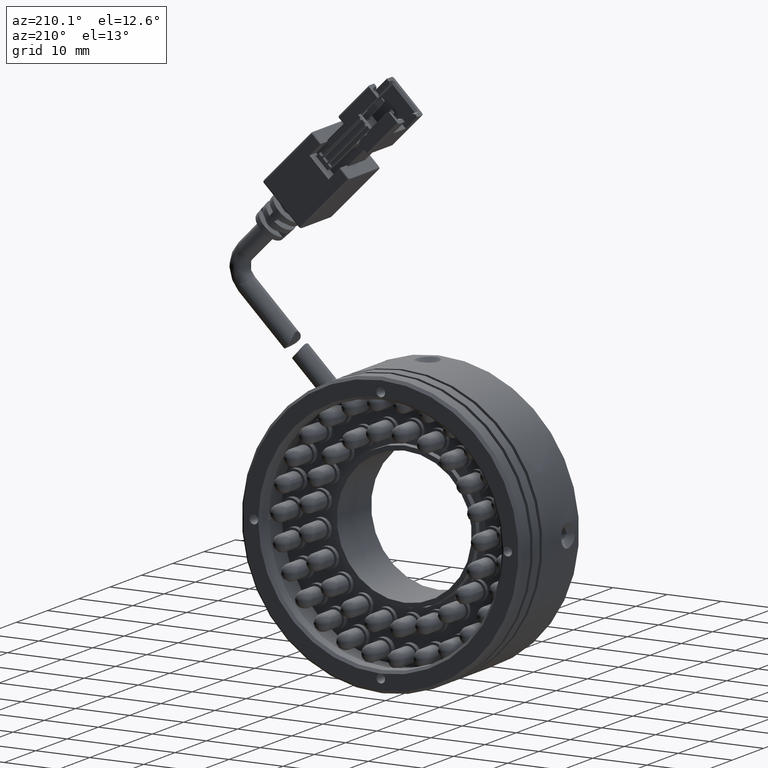
[diagram: clean part render]
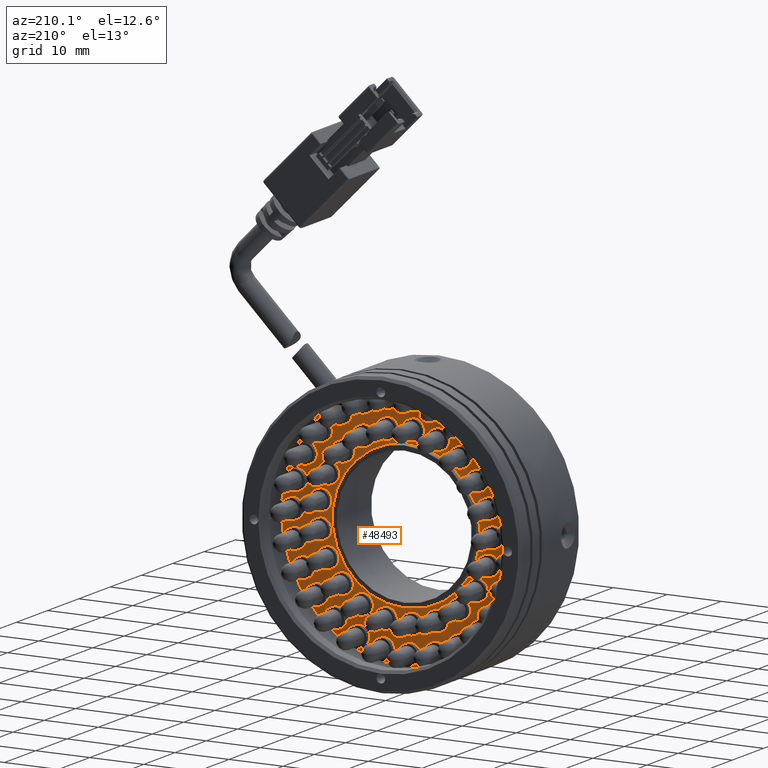
[diagram: same view with one face highlighted and labeled with its STEP entity id]
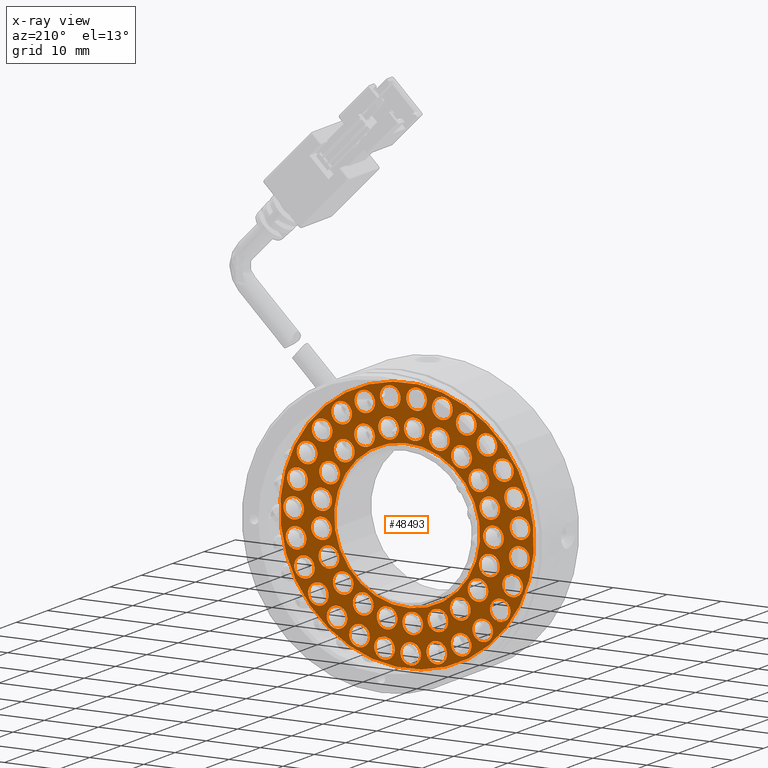
[diagram: x-ray of the same camera — body ghosted, the highlighted face saturated]
A machine part, auxiliary view. The second image highlights one B-rep face of the part: STEP entity #48493.
The next image is the same camera in x-ray: the body ghosted, the highlighted face saturated — about 0% of this face is hidden behind the body in this view.
In plain terms, the highlighted planar face has unit normal (0, -1, -0).
Its self-contained STEP definition (entity closure, byte-faithful):
#37 = DIRECTION ( 'NONE',  ( -0.9964823369000800300, 0.0000000000000000000, -0.08380305630557503800 ) ) ;
#49 = CIRCLE ( 'NONE', #19637, 1.900000000000969800 ) ;
#50 = DIRECTION ( 'NONE',  ( -0.9964823369000800300, 0.0000000000000000000, -0.08380305630557498300 ) ) ;
#95 = AXIS2_PLACEMENT_3D ( 'NONE', #1848, #28240, #5646 ) ;
#198 = DIRECTION ( 'NONE',  ( -0.9964823369000799200, 0.0000000000000000000, -0.08380305630557580200 ) ) ;
#213 = FACE_BOUND ( 'NONE', #30491, .T. ) ;
#272 = CARTESIAN_POINT ( 'NONE',  ( -4.659576637153827000, 4.580076170238128500, -14.78733973511462800 ) ) ;
#285 = CIRCLE ( 'NONE', #44778, 1.900000000001690600 ) ;
#335 = EDGE_CURVE ( 'NONE', #2788, #28066, #6690, .T. ) ;
#373 = AXIS2_PLACEMENT_3D ( 'NONE', #29862, #7233, #33606 ) ;
#466 = AXIS2_PLACEMENT_3D ( 'NONE', #7332, #33711, #11115 ) ;
#656 = DIRECTION ( 'NONE',  ( -0.9964823369000801500, 0.0000000000000000000, -0.08380305630557509400 ) ) ;
#693 = DIRECTION ( 'NONE',  ( -0.9964823369000801500, 0.0000000000000000000, -0.08380305630557496900 ) ) ;
#773 = AXIS2_PLACEMENT_3D ( 'NONE', #33294, #10681, #37090 ) ;
#849 = ORIENTED_EDGE ( 'NONE', *, *, #3038, .F. ) ;
#877 = VERTEX_POINT ( 'NONE', #272 ) ;
#879 = VERTEX_POINT ( 'NONE', #1081 ) ;
#918 = EDGE_LOOP ( 'NONE', ( #39013, #17514 ) ) ;
#1081 = CARTESIAN_POINT ( 'NONE',  ( -16.78617151896034800, 4.580076170238128500, 11.24381569832448100 ) ) ;
#1106 = ORIENTED_EDGE ( 'NONE', *, *, #20896, .F. ) ;
#1135 = CIRCLE ( 'NONE', #33402, 1.900000000001709900 ) ;
#1152 = EDGE_CURVE ( 'NONE', #30662, #2390, #41303, .T. ) ;
#1172 = CARTESIAN_POINT ( 'NONE',  ( 9.366369393606577300, 4.580076170238128500, 17.00233797802635400 ) ) ;
#1176 = EDGE_CURVE ( 'NONE', #42451, #31823, #31285, .T. ) ;
#1284 = DIRECTION ( 'NONE',  ( -1.152656876524891300E-021, 1.000000000000000000, 9.025018899253366500E-022 ) ) ;
#1342 = AXIS2_PLACEMENT_3D ( 'NONE', #45186, #22621, #50 ) ;
#1380 = FACE_BOUND ( 'NONE', #2074, .T. ) ;
#1426 = DIRECTION ( 'NONE',  ( -1.152656876524891300E-021, 1.000000000000000000, 9.025018899253366500E-022 ) ) ;
#1437 = EDGE_LOOP ( 'NONE', ( #10917, #7638 ) ) ;
#1660 = CIRCLE ( 'NONE', #20886, 1.900000000000317000 ) ;
#1751 = CARTESIAN_POINT ( 'NONE',  ( 7.967652574504900700, 4.580076170238128500, -19.06222007339512100 ) ) ;
#1821 = DIRECTION ( 'NONE',  ( -1.152656876524891300E-021, 1.000000000000000000, 9.025018899253366500E-022 ) ) ;
#1848 = CARTESIAN_POINT ( 'NONE',  ( 19.70851044701917200, 4.580076170238128500, -4.315750036957144400 ) ) ;
#1866 = ORIENTED_EDGE ( 'NONE', *, *, #10921, .F. ) ;
#1943 = AXIS2_PLACEMENT_3D ( 'NONE', #37529, #14951, #41281 ) ;
#1949 = DIRECTION ( 'NONE',  ( -1.152656876524891300E-021, 1.000000000000000000, 9.025018899253366500E-022 ) ) ;
#1971 = DIRECTION ( 'NONE',  ( -0.9964823369000800300, 0.0000000000000000000, -0.08380305630557521900 ) ) ;
#2074 = EDGE_LOOP ( 'NONE', ( #40921, #21454 ) ) ;
#2089 = VERTEX_POINT ( 'NONE', #23771 ) ;
#2160 = ORIENTED_EDGE ( 'NONE', *, *, #9570, .F. ) ;
#2189 = CARTESIAN_POINT ( 'NONE',  ( 0.9656075807898153500, 4.580076170238128500, -15.72502188844289400 ) ) ;
#2209 = DIRECTION ( 'NONE',  ( -0.9964823369000800300, 0.0000000000000000000, -0.08380305630557470500 ) ) ;
#2211 = CIRCLE ( 'NONE', #11913, 1.900000000000337900 ) ;
#2280 = ORIENTED_EDGE ( 'NONE', *, *, #9464, .F. ) ;
#2339 = EDGE_CURVE ( 'NONE', #20236, #24658, #16364, .T. ) ;
#2348 = DIRECTION ( 'NONE',  ( -0.9964823369000800300, 0.0000000000000000000, -0.08380305630557498300 ) ) ;
#2376 = CIRCLE ( 'NONE', #43122, 1.900000000000454700 ) ;
#2390 = VERTEX_POINT ( 'NONE', #5601 ) ;
#2397 = DIRECTION ( 'NONE',  ( -1.152656876524891300E-021, 1.000000000000000000, 9.025018899253366500E-022 ) ) ;
#2409 = CARTESIAN_POINT ( 'NONE',  ( 12.12620440033161100, 4.580076170238128500, -16.51646461371153400 ) ) ;
#2549 = CARTESIAN_POINT ( 'NONE',  ( 9.175862796408230400, 4.580076170238128500, -13.62379466569605500 ) ) ;
#2577 = FACE_BOUND ( 'NONE', #35612, .T. ) ;
#2585 = DIRECTION ( 'NONE',  ( -1.152656876524891300E-021, 1.000000000000000000, 9.025018899253366500E-022 ) ) ;
#2622 = CARTESIAN_POINT ( 'NONE',  ( -6.552893077264838200, 4.580076170238128500, -14.94656554209529500 ) ) ;
#2668 = CIRCLE ( 'NONE', #47209, 1.900000000000863700 ) ;
#2670 = CIRCLE ( 'NONE', #25585, 1.900000000002131800 ) ;
#2681 = EDGE_CURVE ( 'NONE', #37778, #23220, #6325, .T. ) ;
#2735 = EDGE_LOOP ( 'NONE', ( #27711, #43097 ) ) ;
#2788 = VERTEX_POINT ( 'NONE', #6266 ) ;
#2798 = ORIENTED_EDGE ( 'NONE', *, *, #7646, .F. ) ;
#2809 = DIRECTION ( 'NONE',  ( -1.152656876524891300E-021, 1.000000000000000000, 9.025018899253366500E-022 ) ) ;
#2943 = CARTESIAN_POINT ( 'NONE',  ( -13.74911070226845300, 4.580076170238128500, 15.05835180961108900 ) ) ;
#3038 = EDGE_CURVE ( 'NONE', #24671, #3433, #4518, .T. ) ;
#3082 = AXIS2_PLACEMENT_3D ( 'NONE', #36222, #13622, #39991 ) ;
#3259 = EDGE_CURVE ( 'NONE', #8878, #10476, #27094, .T. ) ;
#3307 = DIRECTION ( 'NONE',  ( -0.9964823369000800300, 0.0000000000000000000, -0.08380305630557510800 ) ) ;
#3370 = CARTESIAN_POINT ( 'NONE',  ( -16.17469156224373700, 4.580076170238128500, 4.576733000881727500 ) ) ;
#3406 = DIRECTION ( 'NONE',  ( -1.152656876524891300E-021, 1.000000000000000000, 9.025018899253366500E-022 ) ) ;
#3433 = VERTEX_POINT ( 'NONE', #40254 ) ;
#3508 = ORIENTED_EDGE ( 'NONE', *, *, #2681, .F. ) ;
#3530 = CARTESIAN_POINT ( 'NONE',  ( 18.15925499619881800, 4.580076170238128500, -8.938977448268302000 ) ) ;
#3531 = AXIS2_PLACEMENT_3D ( 'NONE', #12489, #38877, #16314 ) ;
#3650 = EDGE_CURVE ( 'NONE', #35974, #16925, #19928, .T. ) ;
#3696 = DIRECTION ( 'NONE',  ( -0.9964823369000800300, 0.0000000000000000000, -0.08380305630557484400 ) ) ;
#3749 = CARTESIAN_POINT ( 'NONE',  ( -21.63163485146611000, 4.580076170238128500, -2.973632965574531300 ) ) ;
#3773 = FACE_BOUND ( 'NONE', #40306, .T. ) ;
#3776 = CARTESIAN_POINT ( 'NONE',  ( 19.56774214096332200, 4.580076170238128500, 10.06357775328904200 ) ) ;
#3823 = CIRCLE ( 'NONE', #18118, 1.900000000002028100 ) ;
#3855 = VERTEX_POINT ( 'NONE', #33950 ) ;
#3886 = PLANE ( 'NONE',  #8067 ) ;
#3928 = DIRECTION ( 'NONE',  ( -1.152656876524891300E-021, 1.000000000000000000, 9.025018899253366500E-022 ) ) ;
#3972 = ORIENTED_EDGE ( 'NONE', *, *, #22204, .F. ) ;
#4035 = ORIENTED_EDGE ( 'NONE', *, *, #42778, .F. ) ;
#4042 = CARTESIAN_POINT ( 'NONE',  ( -16.74997554712896200, 4.580076170238128500, -15.79968571663219900 ) ) ;
#4081 = EDGE_CURVE ( 'NONE', #11071, #44201, #20452, .T. ) ;
#4177 = CIRCLE ( 'NONE', #15667, 1.900000000000000100 ) ;
#4255 = CARTESIAN_POINT ( 'NONE',  ( -18.08586376727523500, 4.580076170238128500, -11.98715162663398600 ) ) ;
#4294 = ORIENTED_EDGE ( 'NONE', *, *, #13044, .F. ) ;
#4298 = EDGE_CURVE ( 'NONE', #16925, #35974, #41650, .T. ) ;
#4415 = VERTEX_POINT ( 'NONE', #22321 ) ;
#4504 = EDGE_LOOP ( 'NONE', ( #30062, #1106 ) ) ;
#4518 = CIRCLE ( 'NONE', #48832, 1.900000000000762900 ) ;
#4591 = DIRECTION ( 'NONE',  ( -1.152656876524891300E-021, 1.000000000000000000, 9.025018899253366500E-022 ) ) ;
#4607 = CARTESIAN_POINT ( 'NONE',  ( 6.975721020895298000, 4.580076170238128500, 19.49009757928529800 ) ) ;
#4665 = CARTESIAN_POINT ( 'NONE',  ( -15.87379275725947100, 4.580076170238128500, -9.292293712987431700 ) ) ;
#4811 = EDGE_CURVE ( 'NONE', #40284, #22404, #16886, .T. ) ;
#4858 = EDGE_LOOP ( 'NONE', ( #33827, #36750 ) ) ;
#4863 = VERTEX_POINT ( 'NONE', #5944 ) ;
#4871 = DIRECTION ( 'NONE',  ( 1.152656876524891300E-021, -1.000000000000000000, -9.025018899253366500E-022 ) ) ;
#4923 = FACE_BOUND ( 'NONE', #9517, .T. ) ;
#4982 = ORIENTED_EDGE ( 'NONE', *, *, #25058, .F. ) ;
#4994 = CARTESIAN_POINT ( 'NONE',  ( 21.60182688713121700, 4.580076170238128500, -4.156524229976391800 ) ) ;
#5031 = ORIENTED_EDGE ( 'NONE', *, *, #28860, .F. ) ;
#5106 = CARTESIAN_POINT ( 'NONE',  ( 15.58557031146039600, 4.580076170238128500, -13.08030227157525300 ) ) ;
#5182 = EDGE_CURVE ( 'NONE', #12723, #14369, #17988, .T. ) ;
#5209 = EDGE_CURVE ( 'NONE', #36212, #10328, #25634, .T. ) ;
#5296 = CARTESIAN_POINT ( 'NONE',  ( -1.524647172020224200, 4.580076170238128500, -20.98894183765285200 ) ) ;
#5376 = ORIENTED_EDGE ( 'NONE', *, *, #4811, .F. ) ;
#5472 = DIRECTION ( 'NONE',  ( -0.9964823369000800300, 0.0000000000000000000, -0.08380305630557528800 ) ) ;
#5495 = FACE_BOUND ( 'NONE', #21588, .T. ) ;
#5508 = AXIS2_PLACEMENT_3D ( 'NONE', #20532, #46908, #24343 ) ;
#5531 = DIRECTION ( 'NONE',  ( -1.152656876524891300E-021, 1.000000000000000000, 9.025018899253366500E-022 ) ) ;
#5545 = DIRECTION ( 'NONE',  ( -0.9964823369000800300, 0.0000000000000000000, -0.08380305630557528800 ) ) ;
#5601 = CARTESIAN_POINT ( 'NONE',  ( -8.717324863379380100, 4.580076170238128500, 14.68093480278619400 ) ) ;
#5645 = DIRECTION ( 'NONE',  ( -1.152656876524891300E-021, 1.000000000000000000, 9.025018899253366500E-022 ) ) ;
#5646 = DIRECTION ( 'NONE',  ( -0.9964823369000800300, 0.0000000000000000000, -0.08380305630557478800 ) ) ;
#5656 = ORIENTED_EDGE ( 'NONE', *, *, #42803, .F. ) ;
#5696 = CARTESIAN_POINT ( 'NONE',  ( -14.19552819475613800, 4.580076170238128500, -4.695816096961787700 ) ) ;
#5735 = ORIENTED_EDGE ( 'NONE', *, *, #30259, .F. ) ;
#5771 = AXIS2_PLACEMENT_3D ( 'NONE', #9218, #35620, #13027 ) ;
#5809 = CARTESIAN_POINT ( 'NONE',  ( -13.70085456638474000, 4.580076170238128500, 17.75122056763984100 ) ) ;
#5831 = CIRCLE ( 'NONE', #27522, 1.900000000001243100 ) ;
#5939 = AXIS2_PLACEMENT_3D ( 'NONE', #44503, #21920, #48275 ) ;
#5944 = CARTESIAN_POINT ( 'NONE',  ( -16.19254732716384400, 4.580076170238128500, -11.82792581965329000 ) ) ;
#5969 = CARTESIAN_POINT ( 'NONE',  ( 6.975721020895298000, 4.580076170238128500, 19.49009757928529800 ) ) ;
#6021 = VERTEX_POINT ( 'NONE', #4994 ) ;
#6024 = CARTESIAN_POINT ( 'NONE',  ( -12.08715987703796700, 4.580076170238128500, -8.973842099026146700 ) ) ;
#6079 = CARTESIAN_POINT ( 'NONE',  ( 17.56606402842150800, 4.580076170238128500, 5.207686263590724200 ) ) ;
#6086 = DIRECTION ( 'NONE',  ( -1.152656876524891300E-021, 1.000000000000000000, 9.025018899253366500E-022 ) ) ;
#6121 = FACE_BOUND ( 'NONE', #41587, .T. ) ;
#6129 = VERTEX_POINT ( 'NONE', #5809 ) ;
#6207 = DIRECTION ( 'NONE',  ( -0.9964823369000800300, 0.0000000000000000000, -0.08380305630557528800 ) ) ;
#6247 = CARTESIAN_POINT ( 'NONE',  ( -16.03785873578218400, 4.580076170238128500, 8.733201505704503400 ) ) ;
#6266 = CARTESIAN_POINT ( 'NONE',  ( -3.417963612132397100, 4.580076170238128500, -21.14816764463361700 ) ) ;
#6325 = CIRCLE ( 'NONE', #37179, 1.900000000000900100 ) ;
#6329 = ORIENTED_EDGE ( 'NONE', *, *, #35657, .F. ) ;
#6381 = DIRECTION ( 'NONE',  ( -1.152656876524891300E-021, 1.000000000000000000, 9.025018899253366500E-022 ) ) ;
#6389 = CARTESIAN_POINT ( 'NONE',  ( 14.01952084044394200, 4.580076170238128500, -16.35723880673075900 ) ) ;
#6400 = CIRCLE ( 'NONE', #10838, 1.900000000001074400 ) ;
#6403 = CIRCLE ( 'NONE', #1342, 1.899999999999999500 ) ;
#6409 = DIRECTION ( 'NONE',  ( -0.9964823369000800300, 0.0000000000000000000, -0.08380305630557524600 ) ) ;
#6519 = CARTESIAN_POINT ( 'NONE',  ( 18.15925499619881800, 4.580076170238128500, -8.938977448268302000 ) ) ;
#6588 = CARTESIAN_POINT ( 'NONE',  ( -23.65036427857241500, 4.580076170238128500, 1.741430481406725000 ) ) ;
#6682 = CARTESIAN_POINT ( 'NONE',  ( -18.08586376727523500, 4.580076170238128500, -11.98715162663398600 ) ) ;
#6690 = CIRCLE ( 'NONE', #40665, 1.900000000002028100 ) ;
#6692 = CARTESIAN_POINT ( 'NONE',  ( 7.030317976951647700, 4.580076170238128500, 13.92864459538932900 ) ) ;
#6695 = FACE_BOUND ( 'NONE', #2735, .T. ) ;
#6729 = VERTEX_POINT ( 'NONE', #33476 ) ;
#6794 = EDGE_LOOP ( 'NONE', ( #36556, #2280 ) ) ;
#6812 = CARTESIAN_POINT ( 'NONE',  ( -16.84257376348630000, 4.580076170238128500, -0.1456241227123093500 ) ) ;
#6858 = DIRECTION ( 'NONE',  ( -1.152656876524891300E-021, 1.000000000000000000, 9.025018899253366500E-022 ) ) ;
#6885 = AXIS2_PLACEMENT_3D ( 'NONE', #25398, #2809, #29213 ) ;
#6901 = CARTESIAN_POINT ( 'NONE',  ( 11.61516794669888600, 4.580076170238128500, 6.913829279372638600 ) ) ;
#6950 = CIRCLE ( 'NONE', #43188, 1.900000000000999300 ) ;
#7147 = DIRECTION ( 'NONE',  ( -0.9964823369000800300, 0.0000000000000000000, -0.08380305630557517700 ) ) ;
#7165 = ORIENTED_EDGE ( 'NONE', *, *, #39997, .F. ) ;
#7219 = CARTESIAN_POINT ( 'NONE',  ( -6.346662756393540900, 4.580076170238128500, -20.26603807320257600 ) ) ;
#7233 = DIRECTION ( 'NONE',  ( -1.152656876524891300E-021, 1.000000000000000000, 9.025018899253366500E-022 ) ) ;
#7278 = EDGE_CURVE ( 'NONE', #4415, #45776, #28447, .T. ) ;
#7282 = CARTESIAN_POINT ( 'NONE',  ( -4.496417099272593800, 4.580076170238128500, 20.76690326792110500 ) ) ;
#7320 = DIRECTION ( 'NONE',  ( -0.9964823369000800300, 0.0000000000000000000, -0.08380305630557473300 ) ) ;
#7332 = CARTESIAN_POINT ( 'NONE',  ( 14.95569728229732400, 4.580076170238128500, 2.528575108112641100 ) ) ;
#7527 = DIRECTION ( 'NONE',  ( -0.9964823369000800300, 0.0000000000000000000, -0.08380305630557508000 ) ) ;
#7549 = CIRCLE ( 'NONE', #12352, 1.899999999999999200 ) ;
#7606 = AXIS2_PLACEMENT_3D ( 'NONE', #6682, #33068, #10462 ) ;
#7607 = VERTEX_POINT ( 'NONE', #27490 ) ;
#7638 = ORIENTED_EDGE ( 'NONE', *, *, #25702, .F. ) ;
#7646 = EDGE_CURVE ( 'NONE', #42683, #19887, #24333, .T. ) ;
#7683 = AXIS2_PLACEMENT_3D ( 'NONE', #3749, #30163, #7527 ) ;
#7715 = VERTEX_POINT ( 'NONE', #6024 ) ;
#7794 = CARTESIAN_POINT ( 'NONE',  ( 14.99910558081523800, 4.580076170238128500, -2.240579864952898100 ) ) ;
#7795 = CARTESIAN_POINT ( 'NONE',  ( -9.039197195159706800, 4.580076170238128500, 12.57721624096291200 ) ) ;
#7796 = VERTEX_POINT ( 'NONE', #44114 ) ;
#7812 = DIRECTION ( 'NONE',  ( 1.152656876524891500E-021, -1.000000000000000000, -9.025018899253368400E-022 ) ) ;
#7866 = FACE_BOUND ( 'NONE', #39208, .T. ) ;
#7954 = VERTEX_POINT ( 'NONE', #26136 ) ;
#8015 = ORIENTED_EDGE ( 'NONE', *, *, #8714, .F. ) ;
#8032 = DIRECTION ( 'NONE',  ( -0.9964823369000800300, 0.0000000000000000000, -0.08380305630557489900 ) ) ;
#8067 = AXIS2_PLACEMENT_3D ( 'NONE', #30437, #7812, #34197 ) ;
#8075 = ORIENTED_EDGE ( 'NONE', *, *, #25825, .F. ) ;
#8140 = ORIENTED_EDGE ( 'NONE', *, *, #45796, .F. ) ;
#8400 = ORIENTED_EDGE ( 'NONE', *, *, #44685, .F. ) ;
#8403 = DIRECTION ( 'NONE',  ( -0.9964823369000800300, 0.0000000000000000000, -0.08380305630557528800 ) ) ;
#8530 = EDGE_LOOP ( 'NONE', ( #20056, #2798 ) ) ;
#8619 = AXIS2_PLACEMENT_3D ( 'NONE', #10165, #36583, #14006 ) ;
#8637 = EDGE_CURVE ( 'NONE', #6129, #41196, #21218, .T. ) ;
#8657 = CARTESIAN_POINT ( 'NONE',  ( -0.8432364767453662800, 4.580076170238128500, 1.316013914325325100E-014 ) ) ;
#8679 = ORIENTED_EDGE ( 'NONE', *, *, #3259, .F. ) ;
#8700 = CARTESIAN_POINT ( 'NONE',  ( 14.95569728229732400, 4.580076170238128500, 2.528575108112641100 ) ) ;
#8714 = EDGE_CURVE ( 'NONE', #4863, #37743, #8802, .T. ) ;
#8790 = DIRECTION ( 'NONE',  ( -1.152656876524891300E-021, 1.000000000000000000, 9.025018899253366500E-022 ) ) ;
#8802 = CIRCLE ( 'NONE', #7606, 1.900000000001243100 ) ;
#8823 = DIRECTION ( 'NONE',  ( -1.152656876524891300E-021, 1.000000000000000000, 9.025018899253366500E-022 ) ) ;
#8828 = CARTESIAN_POINT ( 'NONE',  ( 5.227419879424164000, 4.580076170238128500, -20.42110050786939400 ) ) ;
#8878 = VERTEX_POINT ( 'NONE', #14228 ) ;
#8882 = AXIS2_PLACEMENT_3D ( 'NONE', #1751, #28153, #5545 ) ;
#8885 = DIRECTION ( 'NONE',  ( -0.9964823369000800300, 0.0000000000000000000, -0.08380305630557509400 ) ) ;
#8976 = VERTEX_POINT ( 'NONE', #7282 ) ;
#9025 = VERTEX_POINT ( 'NONE', #30228 ) ;
#9032 = FACE_BOUND ( 'NONE', #19005, .T. ) ;
#9084 = DIRECTION ( 'NONE',  ( -0.9964823369000801500, 0.0000000000000000000, -0.08380305630557498300 ) ) ;
#9123 = EDGE_CURVE ( 'NONE', #13636, #30232, #1660, .T. ) ;
#9174 = DIRECTION ( 'NONE',  ( -1.152656876524891300E-021, 1.000000000000000000, 9.025018899253366500E-022 ) ) ;
#9193 = CARTESIAN_POINT ( 'NONE',  ( 2.574977977062359100, 4.580076170238128500, 15.63060491304736600 ) ) ;
#9218 = CARTESIAN_POINT ( 'NONE',  ( -10.70480658778343400, 4.580076170238128500, -12.59958074481409600 ) ) ;
#9248 = EDGE_LOOP ( 'NONE', ( #13021, #4294 ) ) ;
#9275 = EDGE_CURVE ( 'NONE', #31166, #45892, #47634, .T. ) ;
#9281 = CIRCLE ( 'NONE', #8882, 1.900000000002186600 ) ;
#9301 = VERTEX_POINT ( 'NONE', #20408 ) ;
#9317 = EDGE_CURVE ( 'NONE', #37546, #9025, #7549, .T. ) ;
#9345 = ORIENTED_EDGE ( 'NONE', *, *, #30215, .F. ) ;
#9464 = EDGE_CURVE ( 'NONE', #31823, #42451, #9281, .T. ) ;
#9517 = EDGE_LOOP ( 'NONE', ( #30552, #11907 ) ) ;
#9570 = EDGE_CURVE ( 'NONE', #42092, #34431, #13423, .T. ) ;
#9727 = CARTESIAN_POINT ( 'NONE',  ( 20.14981590155790100, 4.580076170238128500, 0.5401405759366138000 ) ) ;
#9967 = AXIS2_PLACEMENT_3D ( 'NONE', #4607, #31004, #8403 ) ;
#10022 = CARTESIAN_POINT ( 'NONE',  ( 2.270234185513430300, 4.580076170238128500, 20.76791516824054200 ) ) ;
#10147 = DIRECTION ( 'NONE',  ( -0.9964823369000801500, 0.0000000000000000000, -0.08380305630557502400 ) ) ;
#10165 = CARTESIAN_POINT ( 'NONE',  ( -18.67948795907067700, 4.580076170238128500, 11.08458989134387300 ) ) ;
#10183 = CARTESIAN_POINT ( 'NONE',  ( -2.184085377634567200, 4.580076170238128500, 15.94371739040129500 ) ) ;
#10224 = FACE_BOUND ( 'NONE', #19855, .T. ) ;
#10233 = ORIENTED_EDGE ( 'NONE', *, *, #22411, .F. ) ;
#10268 = DIRECTION ( 'NONE',  ( -1.152656876524891300E-021, 1.000000000000000000, 9.025018899253366500E-022 ) ) ;
#10295 = DIRECTION ( 'NONE',  ( -0.9964823369000800300, 0.0000000000000000000, -0.08380305630557473300 ) ) ;
#10315 = DIRECTION ( 'NONE',  ( -1.152656876524891300E-021, 1.000000000000000000, 9.025018899253366500E-022 ) ) ;
#10328 = VERTEX_POINT ( 'NONE', #19643 ) ;
#10362 = DIRECTION ( 'NONE',  ( -0.9964823369000800300, 0.0000000000000000000, -0.08380305630557528800 ) ) ;
#10462 = DIRECTION ( 'NONE',  ( -0.9964823369000800300, 0.0000000000000000000, -0.08380305630557489900 ) ) ;
#10468 = DIRECTION ( 'NONE',  ( -0.9964823369000800300, 0.0000000000000000000, -0.08380305630557498300 ) ) ;
#10476 = VERTEX_POINT ( 'NONE', #20285 ) ;
#10491 = CARTESIAN_POINT ( 'NONE',  ( 2.574977977062359100, 4.580076170238128500, 15.63060491304736600 ) ) ;
#10494 = CARTESIAN_POINT ( 'NONE',  ( -1.893651521374830200, 4.580076170238128500, -15.96548239903880500 ) ) ;
#10585 = DIRECTION ( 'NONE',  ( -0.9964823369000801500, 0.0000000000000000000, -0.08380305630557509400 ) ) ;
#10610 = AXIS2_PLACEMENT_3D ( 'NONE', #3370, #29768, #7147 ) ;
#10681 = DIRECTION ( 'NONE',  ( -1.152656876524891300E-021, 1.000000000000000000, 9.025018899253366500E-022 ) ) ;
#10741 = CARTESIAN_POINT ( 'NONE',  ( 5.389229916185935400, 4.580076170238128500, -13.94224627965740900 ) ) ;
#10838 = AXIS2_PLACEMENT_3D ( 'NONE', #44316, #21746, #48102 ) ;
#10867 = DIRECTION ( 'NONE',  ( 1.152656876524891300E-021, -1.000000000000000000, -9.025018899253366500E-022 ) ) ;
#10884 = ORIENTED_EDGE ( 'NONE', *, *, #12965, .F. ) ;
#10917 = ORIENTED_EDGE ( 'NONE', *, *, #22859, .F. ) ;
#10921 = EDGE_CURVE ( 'NONE', #30232, #13636, #17937, .T. ) ;
#10960 = CARTESIAN_POINT ( 'NONE',  ( -0.2907689375244155700, 4.580076170238128500, 16.10294319738188700 ) ) ;
#10996 = DIRECTION ( 'NONE',  ( -0.9964823369000800300, 0.0000000000000000000, -0.08380305630557434400 ) ) ;
#11071 = VERTEX_POINT ( 'NONE', #41406 ) ;
#11099 = EDGE_CURVE ( 'NONE', #36591, #46635, #38549, .T. ) ;
#11115 = DIRECTION ( 'NONE',  ( -0.9964823369000800300, 0.0000000000000000000, -0.08380305630557510800 ) ) ;
#11184 = VERTEX_POINT ( 'NONE', #27234 ) ;
#11404 = CARTESIAN_POINT ( 'NONE',  ( -12.25122585556187900, 4.580076170238128500, 9.051653119665688900 ) ) ;
#11412 = FACE_BOUND ( 'NONE', #21532, .T. ) ;
#11492 = AXIS2_PLACEMENT_3D ( 'NONE', #6812, #33205, #10585 ) ;
#11573 = DIRECTION ( 'NONE',  ( -0.9964823369000800300, 0.0000000000000000000, -0.08380305630557506600 ) ) ;
#11585 = EDGE_LOOP ( 'NONE', ( #4982, #8679 ) ) ;
#11757 = CIRCLE ( 'NONE', #34899, 1.900000000000559000 ) ;
#11800 = CIRCLE ( 'NONE', #5508, 1.900000000000536400 ) ;
#11907 = ORIENTED_EDGE ( 'NONE', *, *, #17891, .F. ) ;
#11913 = AXIS2_PLACEMENT_3D ( 'NONE', #48426, #25873, #3307 ) ;
#11984 = VERTEX_POINT ( 'NONE', #22023 ) ;
#12043 = CARTESIAN_POINT ( 'NONE',  ( -18.73589020359676700, 4.580076170238128500, -0.3048499296929285700 ) ) ;
#12098 = EDGE_CURVE ( 'NONE', #2089, #33333, #13572, .T. ) ;
#12214 = AXIS2_PLACEMENT_3D ( 'NONE', #16468, #42819, #20216 ) ;
#12314 = DIRECTION ( 'NONE',  ( -1.152656876524891300E-021, 1.000000000000000000, 9.025018899253366500E-022 ) ) ;
#12352 = AXIS2_PLACEMENT_3D ( 'NONE', #9193, #35598, #12999 ) ;
#12359 = EDGE_CURVE ( 'NONE', #22404, #40284, #1135, .T. ) ;
#12435 = DIRECTION ( 'NONE',  ( -0.9964823369000801500, 0.0000000000000000000, -0.08380305630557506600 ) ) ;
#12489 = CARTESIAN_POINT ( 'NONE',  ( -20.75499184160895900, 4.580076170238128500, 6.672480669875742600 ) ) ;
#12499 = DIRECTION ( 'NONE',  ( -0.9964823369000800300, 0.0000000000000000000, -0.08380305630557510800 ) ) ;
#12598 = FACE_BOUND ( 'NONE', #20368, .T. ) ;
#12637 = EDGE_LOOP ( 'NONE', ( #44575, #22283 ) ) ;
#12711 = AXIS2_PLACEMENT_3D ( 'NONE', #6519, #32920, #10295 ) ;
#12723 = VERTEX_POINT ( 'NONE', #31343 ) ;
#12735 = CARTESIAN_POINT ( 'NONE',  ( -8.811490147672547100, 4.580076170238128500, -12.44035493783344200 ) ) ;
#12757 = VERTEX_POINT ( 'NONE', #1172 ) ;
#12827 = DIRECTION ( 'NONE',  ( -1.152656876524891300E-021, 1.000000000000000000, 9.025018899253366500E-022 ) ) ;
#12847 = DIRECTION ( 'NONE',  ( -1.152656876524891300E-021, 1.000000000000000000, 9.025018899253366500E-022 ) ) ;
#12897 = EDGE_CURVE ( 'NONE', #24658, #20236, #6950, .T. ) ;
#12907 = AXIS2_PLACEMENT_3D ( 'NONE', #28707, #6086, #32468 ) ;
#12965 = EDGE_CURVE ( 'NONE', #9301, #48666, #24632, .T. ) ;
#12999 = DIRECTION ( 'NONE',  ( -0.9964823369000800300, 0.0000000000000000000, -0.08380305630557498300 ) ) ;
#13021 = ORIENTED_EDGE ( 'NONE', *, *, #5209, .F. ) ;
#13027 = DIRECTION ( 'NONE',  ( -0.9964823369000799200, 0.0000000000000000000, -0.08380305630557533000 ) ) ;
#13044 = EDGE_CURVE ( 'NONE', #10328, #36212, #2211, .T. ) ;
#13087 = AXIS2_PLACEMENT_3D ( 'NONE', #7219, #33583, #10996 ) ;
#13123 = EDGE_LOOP ( 'NONE', ( #10233, #8015 ) ) ;
#13185 = DIRECTION ( 'NONE',  ( -1.152656876524891300E-021, 1.000000000000000000, 9.025018899253366500E-022 ) ) ;
#13196 = CARTESIAN_POINT ( 'NONE',  ( -8.239979196505563800, 4.580076170238128500, -20.42526388018332300 ) ) ;
#13308 = EDGE_LOOP ( 'NONE', ( #8140, #3972 ) ) ;
#13321 = EDGE_LOOP ( 'NONE', ( #41814, #14978 ) ) ;
#13415 = EDGE_LOOP ( 'NONE', ( #31524, #37118 ) ) ;
#13423 = CIRCLE ( 'NONE', #31659, 1.900000000000969800 ) ;
#13497 = VERTEX_POINT ( 'NONE', #11404 ) ;
#13502 = CIRCLE ( 'NONE', #45270, 1.900000000000191800 ) ;
#13525 = DIRECTION ( 'NONE',  ( -0.9964823369000801500, 0.0000000000000000000, -0.08380305630557496900 ) ) ;
#13529 = AXIS2_PLACEMENT_3D ( 'NONE', #44660, #22075, #48427 ) ;
#13536 = DIRECTION ( 'NONE',  ( -0.9964823369000800300, 0.0000000000000000000, -0.08380305630557502400 ) ) ;
#13572 = CIRCLE ( 'NONE', #45350, 1.900000000002186600 ) ;
#13575 = CARTESIAN_POINT ( 'NONE',  ( -0.0003350812637378883900, 4.580076170238128500, -15.80625659205813300 ) ) ;
#13622 = DIRECTION ( 'NONE',  ( -1.152656876524891300E-021, 1.000000000000000000, 9.025018899253366500E-022 ) ) ;
#13633 = DIRECTION ( 'NONE',  ( -1.152656876524891300E-021, 1.000000000000000000, 9.025018899253366500E-022 ) ) ;
#13636 = VERTEX_POINT ( 'NONE', #12043 ) ;
#13649 = CIRCLE ( 'NONE', #40786, 1.899999999999998400 ) ;
#13700 = ORIENTED_EDGE ( 'NONE', *, *, #47919, .F. ) ;
#13704 = CARTESIAN_POINT ( 'NONE',  ( 13.63485226454583800, 4.580076170238128500, -6.810649484394575700 ) ) ;
#13813 = FACE_BOUND ( 'NONE', #16802, .T. ) ;
#13846 = VERTEX_POINT ( 'NONE', #13196 ) ;
#13854 = DIRECTION ( 'NONE',  ( -0.9964823369000800300, 0.0000000000000000000, -0.08380305630557499700 ) ) ;
#13881 = DIRECTION ( 'NONE',  ( -1.152656876524891300E-021, 1.000000000000000000, 9.025018899253366500E-022 ) ) ;
#14006 = DIRECTION ( 'NONE',  ( -0.9964823369000800300, 0.0000000000000000000, -0.08380305630557533000 ) ) ;
#14021 = DIRECTION ( 'NONE',  ( -0.9964823369000800300, 0.0000000000000000000, -0.08380305630557498300 ) ) ;
#14068 = DIRECTION ( 'NONE',  ( -1.152656876524891300E-021, 1.000000000000000000, 9.025018899253366500E-022 ) ) ;
#14138 = ORIENTED_EDGE ( 'NONE', *, *, #9317, .F. ) ;
#14194 = CARTESIAN_POINT ( 'NONE',  ( -10.93251363526985600, 4.580076170238128500, 12.41799043398232000 ) ) ;
#14217 = CIRCLE ( 'NONE', #44370, 1.900000000000602500 ) ;
#14226 = EDGE_CURVE ( 'NONE', #19887, #42683, #2670, .T. ) ;
#14228 = CARTESIAN_POINT ( 'NONE',  ( 8.869037461006103100, 4.580076170238128500, 19.64932338626594400 ) ) ;
#14270 = ORIENTED_EDGE ( 'NONE', *, *, #46119, .F. ) ;
#14292 = CIRCLE ( 'NONE', #40728, 1.900000000002129100 ) ;
#14328 = DIRECTION ( 'NONE',  ( -0.9964823369000800300, 0.0000000000000000000, -0.08380305630557498300 ) ) ;
#14336 = DIRECTION ( 'NONE',  ( -0.9964823369000801500, 0.0000000000000000000, -0.08380305630557533000 ) ) ;
#14369 = VERTEX_POINT ( 'NONE', #4042 ) ;
#14576 = CARTESIAN_POINT ( 'NONE',  ( -20.57280439918100600, 4.580076170238128500, 10.92536408436326500 ) ) ;
#14604 = ORIENTED_EDGE ( 'NONE', *, *, #28451, .T. ) ;
#14647 = CARTESIAN_POINT ( 'NONE',  ( -21.75704783846173000, 4.580076170238128500, 1.900656288387362600 ) ) ;
#14697 = VERTEX_POINT ( 'NONE', #13575 ) ;
#14782 = CARTESIAN_POINT ( 'NONE',  ( -2.184085377634567200, 4.580076170238128500, 15.94371739040129500 ) ) ;
#14890 = VERTEX_POINT ( 'NONE', #14576 ) ;
#14931 = AXIS2_PLACEMENT_3D ( 'NONE', #35429, #12847, #39239 ) ;
#14951 = DIRECTION ( 'NONE',  ( 1.152656876524891300E-021, -1.000000000000000000, -9.025018899253366500E-022 ) ) ;
#14964 = CARTESIAN_POINT ( 'NONE',  ( 1.440786999199612500, 4.580076170238128500, -20.73955212183094000 ) ) ;
#14978 = ORIENTED_EDGE ( 'NONE', *, *, #31196, .F. ) ;
#15001 = FACE_BOUND ( 'NONE', #16159, .T. ) ;
#15005 = ORIENTED_EDGE ( 'NONE', *, *, #9123, .F. ) ;
#15035 = ORIENTED_EDGE ( 'NONE', *, *, #26558, .F. ) ;
#15047 = CIRCLE ( 'NONE', #25512, 13.49999999999999800 ) ;
#15124 = DIRECTION ( 'NONE',  ( -1.152656876524891300E-021, 1.000000000000000000, 9.025018899253366500E-022 ) ) ;
#15241 = ORIENTED_EDGE ( 'NONE', *, *, #5182, .F. ) ;
#15326 = CIRCLE ( 'NONE', #41000, 1.900000000000900100 ) ;
#15570 = FACE_BOUND ( 'NONE', #918, .T. ) ;
#15656 = DIRECTION ( 'NONE',  ( -1.152656876524891300E-021, 1.000000000000000000, 9.025018899253366500E-022 ) ) ;
#15667 = AXIS2_PLACEMENT_3D ( 'NONE', #18868, #45203, #22643 ) ;
#15853 = DIRECTION ( 'NONE',  ( -1.152656876524891300E-021, 1.000000000000000000, 9.025018899253366500E-022 ) ) ;
#15931 = DIRECTION ( 'NONE',  ( -1.152656876524891300E-021, 1.000000000000000000, 9.025018899253366500E-022 ) ) ;
#16001 = EDGE_CURVE ( 'NONE', #14369, #12723, #27316, .T. ) ;
#16010 = VERTEX_POINT ( 'NONE', #37584 ) ;
#16051 = CARTESIAN_POINT ( 'NONE',  ( -15.64242714237866800, 4.580076170238128500, 14.89912600263049200 ) ) ;
#16060 = VERTEX_POINT ( 'NONE', #30504 ) ;
#16101 = AXIS2_PLACEMENT_3D ( 'NONE', #24008, #1426, #27796 ) ;
#16159 = EDGE_LOOP ( 'NONE', ( #48031, #35748 ) ) ;
#16186 = CARTESIAN_POINT ( 'NONE',  ( -6.346662756393540900, 4.580076170238128500, -20.26603807320257600 ) ) ;
#16314 = DIRECTION ( 'NONE',  ( -0.9964823369000800300, 0.0000000000000000000, -0.08380305630557510800 ) ) ;
#16364 = CIRCLE ( 'NONE', #42032, 1.900000000000999300 ) ;
#16468 = CARTESIAN_POINT ( 'NONE',  ( -6.824008423269229500, 4.580076170238128500, 14.84016060976678600 ) ) ;
#16591 = CARTESIAN_POINT ( 'NONE',  ( 17.47888675157267000, 4.580076170238128500, -12.92107646459448100 ) ) ;
#16595 = VERTEX_POINT ( 'NONE', #22493 ) ;
#16650 = AXIS2_PLACEMENT_3D ( 'NONE', #5969, #5645, #5472 ) ;
#16727 = FACE_BOUND ( 'NONE', #13321, .T. ) ;
#16751 = CARTESIAN_POINT ( 'NONE',  ( -9.914221686164102800, 4.580076170238128500, 18.06967218160105300 ) ) ;
#16802 = EDGE_LOOP ( 'NONE', ( #10884, #23278 ) ) ;
#16866 = AXIS2_PLACEMENT_3D ( 'NONE', #2622, #29019, #6409 ) ;
#16884 = DIRECTION ( 'NONE',  ( -1.152656876524891300E-021, 1.000000000000000000, 9.025018899253366500E-022 ) ) ;
#16886 = CIRCLE ( 'NONE', #42643, 1.900000000001709900 ) ;
#16889 = EDGE_LOOP ( 'NONE', ( #14138, #14270 ) ) ;
#16925 = VERTEX_POINT ( 'NONE', #24944 ) ;
#17014 = DIRECTION ( 'NONE',  ( -1.152656876524891300E-021, 1.000000000000000000, 9.025018899253366500E-022 ) ) ;
#17051 = AXIS2_PLACEMENT_3D ( 'NONE', #31405, #8790, #35189 ) ;
#17096 = CARTESIAN_POINT ( 'NONE',  ( -5.488244330130715600, 4.580076170238128500, 20.11543575358837200 ) ) ;
#17150 = ORIENTED_EDGE ( 'NONE', *, *, #34865, .F. ) ;
#17156 = CARTESIAN_POINT ( 'NONE',  ( 9.090840787455613600, 4.580076170238128500, -10.93478881608550800 ) ) ;
#17309 = EDGE_LOOP ( 'NONE', ( #5031, #6329 ) ) ;
#17315 = CARTESIAN_POINT ( 'NONE',  ( -12.82583007538000800, 4.580076170238128500, 12.25876462700172600 ) ) ;
#17404 = AXIS2_PLACEMENT_3D ( 'NONE', #48830, #26282, #3696 ) ;
#17493 = DIRECTION ( 'NONE',  ( -1.152656876524891300E-021, 1.000000000000000000, 9.025018899253366500E-022 ) ) ;
#17514 = ORIENTED_EDGE ( 'NONE', *, *, #18973, .F. ) ;
#17520 = AXIS2_PLACEMENT_3D ( 'NONE', #7794, #34183, #11573 ) ;
#17562 = EDGE_LOOP ( 'NONE', ( #19407, #46003 ) ) ;
#17572 = VERTEX_POINT ( 'NONE', #6247 ) ;
#17607 = EDGE_CURVE ( 'NONE', #38913, #16595, #6400, .T. ) ;
#17860 = ORIENTED_EDGE ( 'NONE', *, *, #16001, .F. ) ;
#17891 = EDGE_CURVE ( 'NONE', #43716, #7954, #13502, .T. ) ;
#17925 = FACE_BOUND ( 'NONE', #39765, .T. ) ;
#17937 = CIRCLE ( 'NONE', #11492, 1.900000000000317000 ) ;
#17961 = VERTEX_POINT ( 'NONE', #5696 ) ;
#17966 = DIRECTION ( 'NONE',  ( -0.9964823369000801500, 0.0000000000000000000, -0.08380305630557498300 ) ) ;
#17978 = DIRECTION ( 'NONE',  ( -0.9964823369000801500, 0.0000000000000000000, -0.08380305630557502400 ) ) ;
#17981 = DIRECTION ( 'NONE',  ( -1.152656876524891300E-021, 1.000000000000000000, 9.025018899253366500E-022 ) ) ;
#17988 = CIRCLE ( 'NONE', #47403, 1.900000000001476500 ) ;
#18068 = EDGE_CURVE ( 'NONE', #13846, #11184, #44721, .T. ) ;
#18118 = AXIS2_PLACEMENT_3D ( 'NONE', #5296, #31698, #9084 ) ;
#18133 = DIRECTION ( 'NONE',  ( -1.152656876524891300E-021, 1.000000000000000000, 9.025018899253366500E-022 ) ) ;
#18294 = CARTESIAN_POINT ( 'NONE',  ( -1.524647172020224200, 4.580076170238128500, -20.98894183765285200 ) ) ;
#18370 = AXIS2_PLACEMENT_3D ( 'NONE', #45170, #22598, #37 ) ;
#18413 = CARTESIAN_POINT ( 'NONE',  ( 15.52816870465688500, 4.580076170238128500, -6.651423677413908400 ) ) ;
#18425 = AXIS2_PLACEMENT_3D ( 'NONE', #47361, #24800, #2209 ) ;
#18433 = DIRECTION ( 'NONE',  ( -0.9964823369000800300, 0.0000000000000000000, -0.08380305630557503800 ) ) ;
#18573 = DIRECTION ( 'NONE',  ( -0.9964823369000800300, 0.0000000000000000000, -0.08380305630557498300 ) ) ;
#18657 = EDGE_LOOP ( 'NONE', ( #29603, #28841 ) ) ;
#18764 = VERTEX_POINT ( 'NONE', #7795 ) ;
#18772 = CARTESIAN_POINT ( 'NONE',  ( -4.077401817744719100, 4.580076170238128500, 15.78449158342070100 ) ) ;
#18868 = CARTESIAN_POINT ( 'NONE',  ( -14.14454229567203200, 4.580076170238128500, 8.892427312685097000 ) ) ;
#18973 = EDGE_CURVE ( 'NONE', #28025, #43745, #21103, .T. ) ;
#19005 = EDGE_LOOP ( 'NONE', ( #24585, #25301 ) ) ;
#19064 = CIRCLE ( 'NONE', #28854, 1.900000000000943600 ) ;
#19088 = FACE_BOUND ( 'NONE', #43598, .T. ) ;
#19130 = CARTESIAN_POINT ( 'NONE',  ( 13.69225387134812200, 4.580076170238128500, -13.23952807855602400 ) ) ;
#19343 = CIRCLE ( 'NONE', #43113, 1.900000000000062700 ) ;
#19407 = ORIENTED_EDGE ( 'NONE', *, *, #43139, .F. ) ;
#19496 = AXIS2_PLACEMENT_3D ( 'NONE', #47134, #24570, #1971 ) ;
#19526 = DIRECTION ( 'NONE',  ( -1.152656876524891300E-021, 1.000000000000000000, 9.025018899253366500E-022 ) ) ;
#19637 = AXIS2_PLACEMENT_3D ( 'NONE', #37678, #15124, #41455 ) ;
#19643 = CARTESIAN_POINT ( 'NONE',  ( -18.86167540149847000, 4.580076170238128500, 6.831706476856362900 ) ) ;
#19824 = DIRECTION ( 'NONE',  ( -0.9964823369000801500, 0.0000000000000000000, -0.08380305630557492700 ) ) ;
#19855 = EDGE_LOOP ( 'NONE', ( #4035, #20057 ) ) ;
#19887 = VERTEX_POINT ( 'NONE', #14964 ) ;
#19928 = CIRCLE ( 'NONE', #12907, 1.899999999999999500 ) ;
#19942 = DIRECTION ( 'NONE',  ( -0.9964823369000800300, 0.0000000000000000000, -0.08380305630557434400 ) ) ;
#20056 = ORIENTED_EDGE ( 'NONE', *, *, #14226, .F. ) ;
#20057 = ORIENTED_EDGE ( 'NONE', *, *, #27299, .F. ) ;
#20207 = DIRECTION ( 'NONE',  ( -1.152656876524891300E-021, 1.000000000000000000, 9.025018899253366500E-022 ) ) ;
#20216 = DIRECTION ( 'NONE',  ( -0.9964823369000801500, 0.0000000000000000000, -0.08380305630557502400 ) ) ;
#20236 = VERTEX_POINT ( 'NONE', #40116 ) ;
#20243 = FACE_BOUND ( 'NONE', #18657, .T. ) ;
#20285 = CARTESIAN_POINT ( 'NONE',  ( 5.082404580784493800, 4.580076170238128500, 19.33087177230465100 ) ) ;
#20299 = VERTEX_POINT ( 'NONE', #44080 ) ;
#20368 = EDGE_LOOP ( 'NONE', ( #35890, #2160 ) ) ;
#20408 = CARTESIAN_POINT ( 'NONE',  ( -12.59812302789431900, 4.580076170238128500, -12.75880655179475200 ) ) ;
#20452 = CIRCLE ( 'NONE', #16101, 1.900000000000495700 ) ;
#20532 = CARTESIAN_POINT ( 'NONE',  ( -21.75704783846173000, 4.580076170238128500, 1.900656288387362600 ) ) ;
#20562 = EDGE_LOOP ( 'NONE', ( #34133, #26074 ) ) ;
#20680 = CARTESIAN_POINT ( 'NONE',  ( -15.64242714237866800, 4.580076170238128500, 14.89912600263049200 ) ) ;
#20827 = CIRCLE ( 'NONE', #30930, 1.900000000001511400 ) ;
#20862 = AXIS2_PLACEMENT_3D ( 'NONE', #14194, #40536, #17978 ) ;
#20885 = VERTEX_POINT ( 'NONE', #31626 ) ;
#20886 = AXIS2_PLACEMENT_3D ( 'NONE', #45806, #23228, #656 ) ;
#20896 = EDGE_CURVE ( 'NONE', #44878, #31052, #20827, .T. ) ;
#20950 = VERTEX_POINT ( 'NONE', #17096 ) ;
#21002 = EDGE_LOOP ( 'NONE', ( #41013, #45971 ) ) ;
#21010 = EDGE_LOOP ( 'NONE', ( #5376, #43395 ) ) ;
#21103 = CIRCLE ( 'NONE', #28632, 1.900000000001288200 ) ;
#21218 = CIRCLE ( 'NONE', #41401, 1.900000000000167300 ) ;
#21363 = CARTESIAN_POINT ( 'NONE',  ( 16.26593855608663800, 4.580076170238128500, -9.098203255249064400 ) ) ;
#21381 = EDGE_CURVE ( 'NONE', #17961, #47902, #28419, .T. ) ;
#21454 = ORIENTED_EDGE ( 'NONE', *, *, #4298, .F. ) ;
#21462 = FACE_BOUND ( 'NONE', #25701, .T. ) ;
#21496 = EDGE_CURVE ( 'NONE', #13497, #17572, #23664, .T. ) ;
#21504 = CIRCLE ( 'NONE', #23128, 1.900000000001288200 ) ;
#21507 = VERTEX_POINT ( 'NONE', #24461 ) ;
#21532 = EDGE_LOOP ( 'NONE', ( #8400, #35427 ) ) ;
#21574 = ORIENTED_EDGE ( 'NONE', *, *, #12098, .F. ) ;
#21588 = EDGE_LOOP ( 'NONE', ( #28304, #33416 ) ) ;
#21645 = CIRCLE ( 'NONE', #38843, 1.900000000000454700 ) ;
#21746 = DIRECTION ( 'NONE',  ( -1.152656876524891300E-021, 1.000000000000000000, 9.025018899253366500E-022 ) ) ;
#21855 = CARTESIAN_POINT ( 'NONE',  ( -19.97918020738662300, 4.580076170238128500, -12.14637743361468300 ) ) ;
#21920 = DIRECTION ( 'NONE',  ( -1.152656876524891300E-021, 1.000000000000000000, 9.025018899253366500E-022 ) ) ;
#21934 = ORIENTED_EDGE ( 'NONE', *, *, #36110, .F. ) ;
#21955 = CARTESIAN_POINT ( 'NONE',  ( 11.25968583371759000, 4.580076170238128500, 17.16156378500701900 ) ) ;
#21975 = EDGE_CURVE ( 'NONE', #11184, #13846, #30692, .T. ) ;
#22023 = CARTESIAN_POINT ( 'NONE',  ( 12.60927507140571400, 4.580076170238128500, 1.131341260125278100 ) ) ;
#22073 = ORIENTED_EDGE ( 'NONE', *, *, #34904, .F. ) ;
#22075 = DIRECTION ( 'NONE',  ( -1.152656876524891300E-021, 1.000000000000000000, 9.025018899253366500E-022 ) ) ;
#22119 = VERTEX_POINT ( 'NONE', #17315 ) ;
#22163 = ORIENTED_EDGE ( 'NONE', *, *, #37459, .F. ) ;
#22177 = DIRECTION ( 'NONE',  ( -1.152656876524891300E-021, 1.000000000000000000, 9.025018899253366500E-022 ) ) ;
#22204 = EDGE_CURVE ( 'NONE', #18764, #22119, #26536, .T. ) ;
#22205 = VERTEX_POINT ( 'NONE', #6588 ) ;
#22283 = ORIENTED_EDGE ( 'NONE', *, *, #21381, .F. ) ;
#22321 = CARTESIAN_POINT ( 'NONE',  ( -8.978670765410443600, 4.580076170238128500, -18.29136114357678600 ) ) ;
#22404 = VERTEX_POINT ( 'NONE', #37899 ) ;
#22411 = EDGE_CURVE ( 'NONE', #37743, #4863, #5831, .T. ) ;
#22416 = EDGE_CURVE ( 'NONE', #31052, #44878, #25903, .T. ) ;
#22425 = CIRCLE ( 'NONE', #43974, 1.899999999999999200 ) ;
#22450 = CIRCLE ( 'NONE', #1943, 23.50000000000000400 ) ;
#22457 = CIRCLE ( 'NONE', #41906, 1.900000000000062700 ) ;
#22493 = CARTESIAN_POINT ( 'NONE',  ( 16.78449541216930300, 4.580076170238128500, 14.06707145195447800 ) ) ;
#22552 = CARTESIAN_POINT ( 'NONE',  ( -14.85665910701733800, 4.580076170238128500, -15.64045990965148100 ) ) ;
#22598 = DIRECTION ( 'NONE',  ( -1.152656876524891300E-021, 1.000000000000000000, 9.025018899253366500E-022 ) ) ;
#22621 = DIRECTION ( 'NONE',  ( -1.152656876524891300E-021, 1.000000000000000000, 9.025018899253366500E-022 ) ) ;
#22625 = FACE_BOUND ( 'NONE', #34020, .T. ) ;
#22643 = DIRECTION ( 'NONE',  ( -0.9964823369000801500, 0.0000000000000000000, -0.08380305630557494100 ) ) ;
#22684 = AXIS2_PLACEMENT_3D ( 'NONE', #25184, #2585, #28988 ) ;
#22715 = ORIENTED_EDGE ( 'NONE', *, *, #18068, .F. ) ;
#22770 = DIRECTION ( 'NONE',  ( -1.152656876524891300E-021, 1.000000000000000000, 9.025018899253366500E-022 ) ) ;
#22775 = EDGE_CURVE ( 'NONE', #879, #14890, #46049, .T. ) ;
#22859 = EDGE_CURVE ( 'NONE', #7607, #33403, #22450, .T. ) ;
#22872 = EDGE_CURVE ( 'NONE', #34431, #42092, #49, .T. ) ;
#22920 = CIRCLE ( 'NONE', #5771, 1.900000000000736700 ) ;
#23128 = AXIS2_PLACEMENT_3D ( 'NONE', #39592, #17014, #43382 ) ;
#23220 = VERTEX_POINT ( 'NONE', #47990 ) ;
#23226 = EDGE_LOOP ( 'NONE', ( #22073, #47992 ) ) ;
#23228 = DIRECTION ( 'NONE',  ( -1.152656876524891300E-021, 1.000000000000000000, 9.025018899253366500E-022 ) ) ;
#23263 = DIRECTION ( 'NONE',  ( -1.152656876524891300E-021, 1.000000000000000000, 9.025018899253366500E-022 ) ) ;
#23278 = ORIENTED_EDGE ( 'NONE', *, *, #23492, .F. ) ;
#23492 = EDGE_CURVE ( 'NONE', #48666, #9301, #22920, .T. ) ;
#23590 = CIRCLE ( 'NONE', #43435, 1.900000000002186600 ) ;
#23664 = CIRCLE ( 'NONE', #34727, 1.900000000000000100 ) ;
#23771 = CARTESIAN_POINT ( 'NONE',  ( 10.23288796021928000, 4.580076170238128500, -16.67569042069231200 ) ) ;
#23809 = FACE_BOUND ( 'NONE', #36995, .T. ) ;
#23811 = EDGE_LOOP ( 'NONE', ( #27624, #40866 ) ) ;
#23841 = ORIENTED_EDGE ( 'NONE', *, *, #9275, .F. ) ;
#23878 = CARTESIAN_POINT ( 'NONE',  ( -7.381560770240867000, 4.580076170238128500, 19.95620994660778200 ) ) ;
#24008 = CARTESIAN_POINT ( 'NONE',  ( 2.270234185513430300, 4.580076170238128500, 20.76791516824054200 ) ) ;
#24028 = CARTESIAN_POINT ( 'NONE',  ( -14.94925732337582900, 4.580076170238128500, 0.01360168426831008500 ) ) ;
#24189 = AXIS2_PLACEMENT_3D ( 'NONE', #10183, #36603, #14021 ) ;
#24265 = VERTEX_POINT ( 'NONE', #10960 ) ;
#24327 = ORIENTED_EDGE ( 'NONE', *, *, #35945, .F. ) ;
#24333 = CIRCLE ( 'NONE', #39467, 1.900000000002131800 ) ;
#24343 = DIRECTION ( 'NONE',  ( -0.9964823369000800300, 0.0000000000000000000, -0.08380305630557503800 ) ) ;
#24379 = FACE_BOUND ( 'NONE', #48757, .T. ) ;
#24391 = AXIS2_PLACEMENT_3D ( 'NONE', #8657, #35033, #12435 ) ;
#24422 = CARTESIAN_POINT ( 'NONE',  ( 17.67442570085188800, 4.580076170238128500, 9.904351946308342000 ) ) ;
#24461 = CARTESIAN_POINT ( 'NONE',  ( 13.15300227382860300, 4.580076170238128500, 17.32078959198768300 ) ) ;
#24462 = VERTEX_POINT ( 'NONE', #4665 ) ;
#24496 = DIRECTION ( 'NONE',  ( -0.9964823369000801500, 0.0000000000000000000, -0.08380305630557492700 ) ) ;
#24547 = CARTESIAN_POINT ( 'NONE',  ( -1.893651521374830200, 4.580076170238128500, -15.96548239903880500 ) ) ;
#24570 = DIRECTION ( 'NONE',  ( -1.152656876524891300E-021, 1.000000000000000000, 9.025018899253366500E-022 ) ) ;
#24585 = ORIENTED_EDGE ( 'NONE', *, *, #12897, .F. ) ;
#24632 = CIRCLE ( 'NONE', #6885, 1.900000000000736700 ) ;
#24658 = VERTEX_POINT ( 'NONE', #28414 ) ;
#24671 = VERTEX_POINT ( 'NONE', #32357 ) ;
#24752 = CIRCLE ( 'NONE', #24391, 13.49999999999999800 ) ;
#24754 = ORIENTED_EDGE ( 'NONE', *, *, #46446, .T. ) ;
#24800 = DIRECTION ( 'NONE',  ( -1.152656876524891300E-021, 1.000000000000000000, 9.025018899253366500E-022 ) ) ;
#24816 = EDGE_CURVE ( 'NONE', #21507, #12757, #2668, .T. ) ;
#24943 = DIRECTION ( 'NONE',  ( -1.152656876524891300E-021, 1.000000000000000000, 9.025018899253366500E-022 ) ) ;
#24944 = CARTESIAN_POINT ( 'NONE',  ( 8.923634417061798300, 4.580076170238128500, 14.08787040236992100 ) ) ;
#24949 = CIRCLE ( 'NONE', #27900, 1.900000000000943600 ) ;
#24986 = CARTESIAN_POINT ( 'NONE',  ( -11.80753812627442100, 4.580076170238128500, 17.91044637462044500 ) ) ;
#25001 = FACE_BOUND ( 'NONE', #13308, .T. ) ;
#25002 = CARTESIAN_POINT ( 'NONE',  ( 13.10578914070426900, 4.580076170238128500, -2.399805671933559600 ) ) ;
#25058 = EDGE_CURVE ( 'NONE', #10476, #8878, #48607, .T. ) ;
#25123 = VERTEX_POINT ( 'NONE', #42519 ) ;
#25184 = CARTESIAN_POINT ( 'NONE',  ( 14.99910558081523800, 4.580076170238128500, -2.240579864952898100 ) ) ;
#25197 = VERTEX_POINT ( 'NONE', #31816 ) ;
#25301 = ORIENTED_EDGE ( 'NONE', *, *, #2339, .F. ) ;
#25395 = EDGE_CURVE ( 'NONE', #25563, #24265, #37392, .T. ) ;
#25398 = CARTESIAN_POINT ( 'NONE',  ( -10.70480658778343400, 4.580076170238128500, -12.59958074481409600 ) ) ;
#25512 = AXIS2_PLACEMENT_3D ( 'NONE', #33470, #10867, #37274 ) ;
#25520 = AXIS2_PLACEMENT_3D ( 'NONE', #27486, #4871, #31261 ) ;
#25563 = VERTEX_POINT ( 'NONE', #18772 ) ;
#25573 = FACE_BOUND ( 'NONE', #4504, .T. ) ;
#25585 = AXIS2_PLACEMENT_3D ( 'NONE', #25978, #3406, #29813 ) ;
#25634 = CIRCLE ( 'NONE', #3531, 1.900000000000337900 ) ;
#25701 = EDGE_LOOP ( 'NONE', ( #23841, #31894 ) ) ;
#25702 = EDGE_CURVE ( 'NONE', #33403, #7607, #46148, .T. ) ;
#25704 = DIRECTION ( 'NONE',  ( -1.152656876524891300E-021, 1.000000000000000000, 9.025018899253366500E-022 ) ) ;
#25744 = DIRECTION ( 'NONE',  ( -0.9964823369000800300, 0.0000000000000000000, -0.08380305630557520500 ) ) ;
#25825 = EDGE_CURVE ( 'NONE', #6021, #25123, #37906, .T. ) ;
#25873 = DIRECTION ( 'NONE',  ( -1.152656876524891300E-021, 1.000000000000000000, 9.025018899253366500E-022 ) ) ;
#25903 = CIRCLE ( 'NONE', #32575, 1.900000000001511400 ) ;
#25978 = CARTESIAN_POINT ( 'NONE',  ( 3.334103439311888500, 4.580076170238128500, -20.58032631485016500 ) ) ;
#26074 = ORIENTED_EDGE ( 'NONE', *, *, #36264, .F. ) ;
#26093 = CARTESIAN_POINT ( 'NONE',  ( -4.930691983159078100, 4.580076170238128500, 14.99938641674737700 ) ) ;
#26136 = CARTESIAN_POINT ( 'NONE',  ( -18.06800800235408000, 4.580076170238128500, 4.417507193901118800 ) ) ;
#26184 = FACE_BOUND ( 'NONE', #20562, .T. ) ;
#26239 = AXIS2_PLACEMENT_3D ( 'NONE', #8700, #35089, #12499 ) ;
#26272 = CARTESIAN_POINT ( 'NONE',  ( 15.78110926074045200, 4.580076170238128500, 9.745126139327641800 ) ) ;
#26282 = DIRECTION ( 'NONE',  ( -1.152656876524891300E-021, 1.000000000000000000, 9.025018899253366500E-022 ) ) ;
#26284 = ORIENTED_EDGE ( 'NONE', *, *, #46600, .F. ) ;
#26368 = DIRECTION ( 'NONE',  ( -0.9964823369000800300, 0.0000000000000000000, -0.08380305630557556600 ) ) ;
#26500 = CARTESIAN_POINT ( 'NONE',  ( -7.381560770240867000, 4.580076170238128500, 19.95620994660778200 ) ) ;
#26520 = ORIENTED_EDGE ( 'NONE', *, *, #4081, .F. ) ;
#26536 = CIRCLE ( 'NONE', #20862, 1.899999999999998400 ) ;
#26558 = EDGE_CURVE ( 'NONE', #44201, #11071, #46618, .T. ) ;
#26592 = CIRCLE ( 'NONE', #48656, 1.900000000000167300 ) ;
#26674 = CIRCLE ( 'NONE', #36364, 1.899999999999999500 ) ;
#26756 = FACE_BOUND ( 'NONE', #35116, .T. ) ;
#26985 = CIRCLE ( 'NONE', #12214, 1.899999999999998400 ) ;
#27003 = ORIENTED_EDGE ( 'NONE', *, *, #1152, .F. ) ;
#27094 = CIRCLE ( 'NONE', #16650, 1.900000000000654700 ) ;
#27202 = CARTESIAN_POINT ( 'NONE',  ( -10.93251363526985600, 4.580076170238128500, 12.41799043398232000 ) ) ;
#27234 = CARTESIAN_POINT ( 'NONE',  ( -4.453346316281519000, 4.580076170238128500, -20.10681226622182600 ) ) ;
#27299 = EDGE_CURVE ( 'NONE', #40760, #33540, #19343, .T. ) ;
#27316 = CIRCLE ( 'NONE', #35493, 1.900000000001476500 ) ;
#27342 = VERTEX_POINT ( 'NONE', #38636 ) ;
#27474 = AXIS2_PLACEMENT_3D ( 'NONE', #43680, #13185, #10362 ) ;
#27486 = CARTESIAN_POINT ( 'NONE',  ( -0.8432364767453662800, 4.580076170238128500, 1.316013914325325100E-014 ) ) ;
#27490 = CARTESIAN_POINT ( 'NONE',  ( -24.26057139389725100, 4.580076170238128500, -1.969371823181000900 ) ) ;
#27522 = AXIS2_PLACEMENT_3D ( 'NONE', #4255, #30647, #8032 ) ;
#27542 = EDGE_CURVE ( 'NONE', #46635, #36591, #47000, .T. ) ;
#27624 = ORIENTED_EDGE ( 'NONE', *, *, #34507, .F. ) ;
#27650 = DIRECTION ( 'NONE',  ( -0.9964823369000800300, 0.0000000000000000000, -0.08380305630557498300 ) ) ;
#27682 = CARTESIAN_POINT ( 'NONE',  ( 12.87747366767785100, 4.580076170238128500, -10.61633720212415900 ) ) ;
#27711 = ORIENTED_EDGE ( 'NONE', *, *, #35596, .F. ) ;
#27772 = CIRCLE ( 'NONE', #466, 1.900000000000694900 ) ;
#27796 = DIRECTION ( 'NONE',  ( -0.9964823369000800300, 0.0000000000000000000, -0.08380305630557499700 ) ) ;
#27900 = AXIS2_PLACEMENT_3D ( 'NONE', #24547, #1949, #28347 ) ;
#27922 = FACE_BOUND ( 'NONE', #23811, .T. ) ;
#28019 = CIRCLE ( 'NONE', #17404, 1.900000000000602500 ) ;
#28025 = VERTEX_POINT ( 'NONE', #3776 ) ;
#28066 = VERTEX_POINT ( 'NONE', #37726 ) ;
#28139 = CARTESIAN_POINT ( 'NONE',  ( 3.334103439311888500, 4.580076170238128500, -20.58032631485016500 ) ) ;
#28153 = DIRECTION ( 'NONE',  ( -1.152656876524891300E-021, 1.000000000000000000, 9.025018899253366500E-022 ) ) ;
#28223 = DIRECTION ( 'NONE',  ( -0.9964823369000801500, 0.0000000000000000000, -0.08380305630557474700 ) ) ;
#28240 = DIRECTION ( 'NONE',  ( -1.152656876524891300E-021, 1.000000000000000000, 9.025018899253366500E-022 ) ) ;
#28304 = ORIENTED_EDGE ( 'NONE', *, *, #17607, .F. ) ;
#28347 = DIRECTION ( 'NONE',  ( -0.9964823369000801500, 0.0000000000000000000, -0.08380305630557533000 ) ) ;
#28414 = CARTESIAN_POINT ( 'NONE',  ( -22.27883036732413700, 4.580076170238128500, -7.846838703646781700 ) ) ;
#28419 = CIRCLE ( 'NONE', #17051, 1.900000000000459800 ) ;
#28447 = CIRCLE ( 'NONE', #773, 1.900000000001690600 ) ;
#28451 = EDGE_CURVE ( 'NONE', #11984, #20885, #15047, .T. ) ;
#28632 = AXIS2_PLACEMENT_3D ( 'NONE', #24422, #1821, #28223 ) ;
#28707 = CARTESIAN_POINT ( 'NONE',  ( 7.030317976951647700, 4.580076170238128500, 13.92864459538932900 ) ) ;
#28790 = DIRECTION ( 'NONE',  ( -0.9964823369000800300, 0.0000000000000000000, -0.08380305630557487200 ) ) ;
#28805 = DIRECTION ( 'NONE',  ( -1.152656876524891300E-021, 1.000000000000000000, 9.025018899253366500E-022 ) ) ;
#28841 = ORIENTED_EDGE ( 'NONE', *, *, #30829, .F. ) ;
#28854 = AXIS2_PLACEMENT_3D ( 'NONE', #10494, #36908, #14336 ) ;
#28860 = EDGE_CURVE ( 'NONE', #36175, #36823, #38530, .T. ) ;
#28895 = ORIENTED_EDGE ( 'NONE', *, *, #335, .F. ) ;
#28988 = DIRECTION ( 'NONE',  ( -0.9964823369000800300, 0.0000000000000000000, -0.08380305630557506600 ) ) ;
#28991 = CARTESIAN_POINT ( 'NONE',  ( 10.78605811110533000, 4.580076170238128500, 10.98906308058041500 ) ) ;
#29019 = DIRECTION ( 'NONE',  ( -1.152656876524891300E-021, 1.000000000000000000, 9.025018899253366500E-022 ) ) ;
#29067 = CIRCLE ( 'NONE', #26239, 1.900000000000694900 ) ;
#29148 = FACE_BOUND ( 'NONE', #17562, .T. ) ;
#29213 = DIRECTION ( 'NONE',  ( -0.9964823369000799200, 0.0000000000000000000, -0.08380305630557533000 ) ) ;
#29221 = CARTESIAN_POINT ( 'NONE',  ( 0.3769177454027842800, 4.580076170238128500, 20.60868936125990600 ) ) ;
#29322 = CIRCLE ( 'NONE', #10610, 1.900000000000191800 ) ;
#29473 = CARTESIAN_POINT ( 'NONE',  ( -18.67948795907067700, 4.580076170238128500, 11.08458989134387300 ) ) ;
#29603 = ORIENTED_EDGE ( 'NONE', *, *, #8637, .F. ) ;
#29696 = EDGE_CURVE ( 'NONE', #45729, #48157, #14292, .T. ) ;
#29768 = DIRECTION ( 'NONE',  ( -1.152656876524891300E-021, 1.000000000000000000, 9.025018899253366500E-022 ) ) ;
#29813 = DIRECTION ( 'NONE',  ( -0.9964823369000799200, 0.0000000000000000000, -0.08380305630557588500 ) ) ;
#29862 = CARTESIAN_POINT ( 'NONE',  ( 15.58557031146039600, 4.580076170238128500, -13.08030227157525300 ) ) ;
#29873 = CIRCLE ( 'NONE', #37126, 1.899999999999999500 ) ;
#29944 = DIRECTION ( 'NONE',  ( -1.152656876524891300E-021, 1.000000000000000000, 9.025018899253366500E-022 ) ) ;
#30039 = AXIS2_PLACEMENT_3D ( 'NONE', #40488, #10315, #10147 ) ;
#30062 = ORIENTED_EDGE ( 'NONE', *, *, #22416, .F. ) ;
#30163 = DIRECTION ( 'NONE',  ( -1.152656876524891300E-021, 1.000000000000000000, 9.025018899253366500E-022 ) ) ;
#30173 = CIRCLE ( 'NONE', #18370, 1.900000000001074400 ) ;
#30177 = AXIS2_PLACEMENT_3D ( 'NONE', #10022, #36430, #13854 ) ;
#30197 = EDGE_CURVE ( 'NONE', #27342, #16010, #29067, .T. ) ;
#30215 = EDGE_CURVE ( 'NONE', #20950, #20299, #47894, .T. ) ;
#30228 = CARTESIAN_POINT ( 'NONE',  ( 4.468294417172510100, 4.580076170238128500, 15.78983072002795900 ) ) ;
#30229 = CIRCLE ( 'NONE', #31087, 1.900000000002033600 ) ;
#30232 = VERTEX_POINT ( 'NONE', #24028 ) ;
#30240 = CARTESIAN_POINT ( 'NONE',  ( 16.89242202092620500, 4.580076170238128500, -2.081354057972236900 ) ) ;
#30259 = EDGE_CURVE ( 'NONE', #44476, #8976, #26674, .T. ) ;
#30318 = DIRECTION ( 'NONE',  ( -0.9964823369000800300, 0.0000000000000000000, -0.08380305630557498300 ) ) ;
#30334 = FACE_BOUND ( 'NONE', #36402, .T. ) ;
#30437 = CARTESIAN_POINT ( 'NONE',  ( -0.8432364767453662800, 4.580076170238128500, 1.316013914325325100E-014 ) ) ;
#30491 = EDGE_LOOP ( 'NONE', ( #17150, #45881 ) ) ;
#30504 = CARTESIAN_POINT ( 'NONE',  ( 20.05257143631099500, 4.580076170238128500, -8.779751641287539600 ) ) ;
#30552 = ORIENTED_EDGE ( 'NONE', *, *, #33999, .F. ) ;
#30638 = VERTEX_POINT ( 'NONE', #10741 ) ;
#30647 = DIRECTION ( 'NONE',  ( -1.152656876524891300E-021, 1.000000000000000000, 9.025018899253366500E-022 ) ) ;
#30662 = VERTEX_POINT ( 'NONE', #26093 ) ;
#30674 = EDGE_CURVE ( 'NONE', #16595, #38913, #30173, .T. ) ;
#30692 = CIRCLE ( 'NONE', #48024, 1.900000000001876900 ) ;
#30705 = AXIS2_PLACEMENT_3D ( 'NONE', #29473, #6858, #33247 ) ;
#30829 = EDGE_CURVE ( 'NONE', #41196, #6129, #26592, .T. ) ;
#30911 = CIRCLE ( 'NONE', #33669, 1.900000000000999300 ) ;
#30930 = AXIS2_PLACEMENT_3D ( 'NONE', #31788, #9174, #35573 ) ;
#30985 = DIRECTION ( 'NONE',  ( -0.9964823369000801500, 0.0000000000000000000, -0.08380305630557502400 ) ) ;
#31004 = DIRECTION ( 'NONE',  ( -1.152656876524891300E-021, 1.000000000000000000, 9.025018899253366500E-022 ) ) ;
#31052 = VERTEX_POINT ( 'NONE', #6079 ) ;
#31087 = AXIS2_PLACEMENT_3D ( 'NONE', #3530, #29944, #7320 ) ;
#31143 = AXIS2_PLACEMENT_3D ( 'NONE', #36645, #14068, #40408 ) ;
#31166 = VERTEX_POINT ( 'NONE', #6901 ) ;
#31196 = EDGE_CURVE ( 'NONE', #48157, #45729, #40664, .T. ) ;
#31261 = DIRECTION ( 'NONE',  ( -0.9964823369000800300, 0.0000000000000000000, -0.08380305630557505200 ) ) ;
#31265 = CIRCLE ( 'NONE', #34985, 1.900000000000536400 ) ;
#31271 = AXIS2_PLACEMENT_3D ( 'NONE', #23878, #1284, #27650 ) ;
#31285 = CIRCLE ( 'NONE', #27474, 1.900000000002186600 ) ;
#31343 = CARTESIAN_POINT ( 'NONE',  ( -12.96334266690571400, 4.580076170238128500, -15.48123410267076500 ) ) ;
#31405 = CARTESIAN_POINT ( 'NONE',  ( -16.08884463486674600, 4.580076170238128500, -4.855041903942419500 ) ) ;
#31443 = CARTESIAN_POINT ( 'NONE',  ( -16.17469156224373700, 4.580076170238128500, 4.576733000881727500 ) ) ;
#31483 = FACE_BOUND ( 'NONE', #13415, .T. ) ;
#31499 = DIRECTION ( 'NONE',  ( -1.152656876524891300E-021, 1.000000000000000000, 9.025018899253366500E-022 ) ) ;
#31524 = ORIENTED_EDGE ( 'NONE', *, *, #30197, .F. ) ;
#31626 = CARTESIAN_POINT ( 'NONE',  ( -14.29574802489644700, 4.580076170238128500, -1.131341260125249900 ) ) ;
#31659 = AXIS2_PLACEMENT_3D ( 'NONE', #36237, #13633, #40003 ) ;
#31683 = EDGE_CURVE ( 'NONE', #16060, #39604, #41752, .T. ) ;
#31698 = DIRECTION ( 'NONE',  ( -1.152656876524891300E-021, 1.000000000000000000, 9.025018899253366500E-022 ) ) ;
#31788 = CARTESIAN_POINT ( 'NONE',  ( 19.45938046853316500, 4.580076170238128500, 5.366912070571443000 ) ) ;
#31816 = CARTESIAN_POINT ( 'NONE',  ( -3.786967961485922600, 4.580076170238128500, -16.12470820601947700 ) ) ;
#31823 = VERTEX_POINT ( 'NONE', #48843 ) ;
#31894 = ORIENTED_EDGE ( 'NONE', *, *, #36253, .F. ) ;
#31926 = DIRECTION ( 'NONE',  ( -0.9964823369000799200, 0.0000000000000000000, -0.08380305630557588500 ) ) ;
#32035 = CIRCLE ( 'NONE', #7683, 1.900000000000762900 ) ;
#32357 = CARTESIAN_POINT ( 'NONE',  ( -23.52495129157702200, 4.580076170238128500, -3.132858772555188000 ) ) ;
#32468 = DIRECTION ( 'NONE',  ( -0.9964823369000800300, 0.0000000000000000000, -0.08380305630557498300 ) ) ;
#32575 = AXIS2_PLACEMENT_3D ( 'NONE', #38218, #15656, #41991 ) ;
#32673 = FACE_BOUND ( 'NONE', #4858, .T. ) ;
#32774 = DIRECTION ( 'NONE',  ( -0.9964823369000800300, 0.0000000000000000000, -0.08380305630557498300 ) ) ;
#32891 = CARTESIAN_POINT ( 'NONE',  ( 20.14981590155790100, 4.580076170238128500, 0.5401405759366138000 ) ) ;
#32920 = DIRECTION ( 'NONE',  ( -1.152656876524891300E-021, 1.000000000000000000, 9.025018899253366500E-022 ) ) ;
#33068 = DIRECTION ( 'NONE',  ( -1.152656876524891300E-021, 1.000000000000000000, 9.025018899253366500E-022 ) ) ;
#33075 = DIRECTION ( 'NONE',  ( -1.152656876524891300E-021, 1.000000000000000000, 9.025018899253366500E-022 ) ) ;
#33205 = DIRECTION ( 'NONE',  ( -1.152656876524891300E-021, 1.000000000000000000, 9.025018899253366500E-022 ) ) ;
#33247 = DIRECTION ( 'NONE',  ( -0.9964823369000800300, 0.0000000000000000000, -0.08380305630557533000 ) ) ;
#33294 = CARTESIAN_POINT ( 'NONE',  ( -10.87198720552228100, 4.580076170238128500, -18.45058695055751800 ) ) ;
#33333 = VERTEX_POINT ( 'NONE', #6389 ) ;
#33402 = AXIS2_PLACEMENT_3D ( 'NONE', #32891, #10268, #36685 ) ;
#33403 = VERTEX_POINT ( 'NONE', #40824 ) ;
#33416 = ORIENTED_EDGE ( 'NONE', *, *, #30674, .F. ) ;
#33470 = CARTESIAN_POINT ( 'NONE',  ( -0.8432364767453662800, 4.580076170238128500, 1.316013914325325100E-014 ) ) ;
#33476 = CARTESIAN_POINT ( 'NONE',  ( -19.86373139835104200, 4.580076170238128500, 2.059882095368000200 ) ) ;
#33540 = VERTEX_POINT ( 'NONE', #38023 ) ;
#33574 = EDGE_CURVE ( 'NONE', #38213, #30638, #30911, .T. ) ;
#33583 = DIRECTION ( 'NONE',  ( -1.152656876524891300E-021, 1.000000000000000000, 9.025018899253366500E-022 ) ) ;
#33606 = DIRECTION ( 'NONE',  ( -0.9964823369000800300, 0.0000000000000000000, -0.08380305630557509400 ) ) ;
#33669 = AXIS2_PLACEMENT_3D ( 'NONE', #42116, #19526, #45896 ) ;
#33694 = CARTESIAN_POINT ( 'NONE',  ( -14.28137512213339200, 4.580076170238128500, 4.735958807862336300 ) ) ;
#33711 = DIRECTION ( 'NONE',  ( -1.152656876524891300E-021, 1.000000000000000000, 9.025018899253366500E-022 ) ) ;
#33734 = CARTESIAN_POINT ( 'NONE',  ( 21.35269690864482300, 4.580076170238128500, 5.526137877552163700 ) ) ;
#33827 = ORIENTED_EDGE ( 'NONE', *, *, #11099, .F. ) ;
#33835 = CIRCLE ( 'NONE', #8619, 1.900000000000177500 ) ;
#33865 = FACE_BOUND ( 'NONE', #12637, .T. ) ;
#33923 = CARTESIAN_POINT ( 'NONE',  ( -17.98216107497735900, 4.580076170238128500, -5.014267710923050500 ) ) ;
#33950 = CARTESIAN_POINT ( 'NONE',  ( -8.446209517375850200, 4.580076170238128500, -15.10579134907595900 ) ) ;
#33999 = EDGE_CURVE ( 'NONE', #7954, #43716, #29322, .T. ) ;
#34020 = EDGE_LOOP ( 'NONE', ( #26284, #44601 ) ) ;
#34133 = ORIENTED_EDGE ( 'NONE', *, *, #25395, .F. ) ;
#34183 = DIRECTION ( 'NONE',  ( -1.152656876524891300E-021, 1.000000000000000000, 9.025018899253366500E-022 ) ) ;
#34197 = DIRECTION ( 'NONE',  ( 0.9964823369000801500, 1.072969801266169900E-021, 0.08380305630557506600 ) ) ;
#34298 = CIRCLE ( 'NONE', #17520, 1.900000000000820100 ) ;
#34380 = EDGE_CURVE ( 'NONE', #47902, #17961, #36311, .T. ) ;
#34414 = FACE_BOUND ( 'NONE', #11585, .T. ) ;
#34431 = VERTEX_POINT ( 'NONE', #17156 ) ;
#34507 = EDGE_CURVE ( 'NONE', #45776, #4415, #285, .T. ) ;
#34553 = EDGE_CURVE ( 'NONE', #25123, #6021, #48046, .T. ) ;
#34574 = EDGE_CURVE ( 'NONE', #12757, #21507, #38035, .T. ) ;
#34727 = AXIS2_PLACEMENT_3D ( 'NONE', #39473, #16884, #43242 ) ;
#34865 = EDGE_CURVE ( 'NONE', #14890, #879, #33835, .T. ) ;
#34899 = AXIS2_PLACEMENT_3D ( 'NONE', #44752, #22177, #48527 ) ;
#34904 = EDGE_CURVE ( 'NONE', #25197, #14697, #19064, .T. ) ;
#34912 = CARTESIAN_POINT ( 'NONE',  ( -14.85665910701733800, 4.580076170238128500, -15.64045990965148100 ) ) ;
#34913 = CARTESIAN_POINT ( 'NONE',  ( -0.7097842190522906100, 4.580076170238128500, 21.08535488188228900 ) ) ;
#34985 = AXIS2_PLACEMENT_3D ( 'NONE', #14647, #40991, #18433 ) ;
#35017 = EDGE_CURVE ( 'NONE', #3433, #24671, #32035, .T. ) ;
#35024 = FACE_BOUND ( 'NONE', #47338, .T. ) ;
#35033 = DIRECTION ( 'NONE',  ( 1.152656876524891300E-021, -1.000000000000000000, -9.025018899253366500E-022 ) ) ;
#35089 = DIRECTION ( 'NONE',  ( -1.152656876524891300E-021, 1.000000000000000000, 9.025018899253366500E-022 ) ) ;
#35116 = EDGE_LOOP ( 'NONE', ( #21574, #21934 ) ) ;
#35164 = EDGE_LOOP ( 'NONE', ( #37553, #8075 ) ) ;
#35189 = DIRECTION ( 'NONE',  ( -0.9964823369000800300, 0.0000000000000000000, -0.08380305630557521900 ) ) ;
#35216 = DIRECTION ( 'NONE',  ( -0.9964823369000800300, 0.0000000000000000000, -0.08380305630557517700 ) ) ;
#35351 = CIRCLE ( 'NONE', #18425, 1.900000000000999300 ) ;
#35366 = AXIS2_PLACEMENT_3D ( 'NONE', #6692, #33075, #10468 ) ;
#35412 = CARTESIAN_POINT ( 'NONE',  ( -2.603100659162442400, 4.580076170238128500, 20.92612907490169900 ) ) ;
#35427 = ORIENTED_EDGE ( 'NONE', *, *, #36612, .F. ) ;
#35429 = CARTESIAN_POINT ( 'NONE',  ( 13.50848438680959500, 4.580076170238128500, 7.073055086353277500 ) ) ;
#35493 = AXIS2_PLACEMENT_3D ( 'NONE', #22552, #48914, #26368 ) ;
#35573 = DIRECTION ( 'NONE',  ( -0.9964823369000799200, 0.0000000000000000000, -0.08380305630557492700 ) ) ;
#35596 = EDGE_CURVE ( 'NONE', #39604, #16060, #30229, .T. ) ;
#35598 = DIRECTION ( 'NONE',  ( -1.152656876524891300E-021, 1.000000000000000000, 9.025018899253366500E-022 ) ) ;
#35599 = FACE_BOUND ( 'NONE', #21010, .T. ) ;
#35612 = EDGE_LOOP ( 'NONE', ( #40981, #3508 ) ) ;
#35620 = DIRECTION ( 'NONE',  ( -1.152656876524891300E-021, 1.000000000000000000, 9.025018899253366500E-022 ) ) ;
#35657 = EDGE_CURVE ( 'NONE', #36823, #36175, #34298, .T. ) ;
#35748 = ORIENTED_EDGE ( 'NONE', *, *, #21496, .F. ) ;
#35890 = ORIENTED_EDGE ( 'NONE', *, *, #22872, .F. ) ;
#35945 = EDGE_CURVE ( 'NONE', #24462, #7715, #14217, .T. ) ;
#35974 = VERTEX_POINT ( 'NONE', #39030 ) ;
#36047 = EDGE_CURVE ( 'NONE', #6729, #22205, #11800, .T. ) ;
#36110 = EDGE_CURVE ( 'NONE', #33333, #2089, #23590, .T. ) ;
#36134 = DIRECTION ( 'NONE',  ( -1.152656876524891300E-021, 1.000000000000000000, 9.025018899253366500E-022 ) ) ;
#36175 = VERTEX_POINT ( 'NONE', #25002 ) ;
#36212 = VERTEX_POINT ( 'NONE', #40635 ) ;
#36222 = CARTESIAN_POINT ( 'NONE',  ( -6.552893077264838200, 4.580076170238128500, -14.94656554209529500 ) ) ;
#36237 = CARTESIAN_POINT ( 'NONE',  ( 10.98415722756673300, 4.580076170238128500, -10.77556300910483400 ) ) ;
#36253 = EDGE_CURVE ( 'NONE', #45892, #31166, #11757, .T. ) ;
#36264 = EDGE_CURVE ( 'NONE', #24265, #25563, #40667, .T. ) ;
#36311 = CIRCLE ( 'NONE', #19496, 1.900000000000459800 ) ;
#36364 = AXIS2_PLACEMENT_3D ( 'NONE', #35412, #12827, #39223 ) ;
#36402 = EDGE_LOOP ( 'NONE', ( #13700, #9345 ) ) ;
#36430 = DIRECTION ( 'NONE',  ( -1.152656876524891300E-021, 1.000000000000000000, 9.025018899253366500E-022 ) ) ;
#36556 = ORIENTED_EDGE ( 'NONE', *, *, #1176, .F. ) ;
#36583 = DIRECTION ( 'NONE',  ( -1.152656876524891300E-021, 1.000000000000000000, 9.025018899253366500E-022 ) ) ;
#36591 = VERTEX_POINT ( 'NONE', #2189 ) ;
#36603 = DIRECTION ( 'NONE',  ( -1.152656876524891300E-021, 1.000000000000000000, 9.025018899253366500E-022 ) ) ;
#36612 = EDGE_CURVE ( 'NONE', #7796, #44435, #2376, .T. ) ;
#36645 = CARTESIAN_POINT ( 'NONE',  ( 2.858924020900958800, 4.580076170238128500, -15.56579608146221700 ) ) ;
#36685 = DIRECTION ( 'NONE',  ( -0.9964823369000800300, 0.0000000000000000000, -0.08380305630557502400 ) ) ;
#36750 = ORIENTED_EDGE ( 'NONE', *, *, #27542, .F. ) ;
#36805 = FACE_BOUND ( 'NONE', #6794, .T. ) ;
#36823 = VERTEX_POINT ( 'NONE', #30240 ) ;
#36907 = DIRECTION ( 'NONE',  ( -1.152656876524891300E-021, 1.000000000000000000, 9.025018899253366500E-022 ) ) ;
#36908 = DIRECTION ( 'NONE',  ( -1.152656876524891300E-021, 1.000000000000000000, 9.025018899253366500E-022 ) ) ;
#36995 = EDGE_LOOP ( 'NONE', ( #24327, #37237 ) ) ;
#37090 = DIRECTION ( 'NONE',  ( -0.9964823369000800300, 0.0000000000000000000, -0.08380305630557526000 ) ) ;
#37118 = ORIENTED_EDGE ( 'NONE', *, *, #41475, .F. ) ;
#37126 = AXIS2_PLACEMENT_3D ( 'NONE', #26500, #3928, #30318 ) ;
#37179 = AXIS2_PLACEMENT_3D ( 'NONE', #13704, #13881, #13525 ) ;
#37237 = ORIENTED_EDGE ( 'NONE', *, *, #45322, .F. ) ;
#37274 = DIRECTION ( 'NONE',  ( -0.9964823369000801500, 0.0000000000000000000, -0.08380305630557506600 ) ) ;
#37392 = CIRCLE ( 'NONE', #24189, 1.899999999999999500 ) ;
#37459 = EDGE_CURVE ( 'NONE', #2390, #30662, #26985, .T. ) ;
#37529 = CARTESIAN_POINT ( 'NONE',  ( -0.8432364767453662800, 4.580076170238128500, 1.316013914325325100E-014 ) ) ;
#37546 = VERTEX_POINT ( 'NONE', #43481 ) ;
#37553 = ORIENTED_EDGE ( 'NONE', *, *, #34553, .F. ) ;
#37584 = CARTESIAN_POINT ( 'NONE',  ( 16.84901372240817000, 4.580076170238128500, 2.687800915093292000 ) ) ;
#37678 = CARTESIAN_POINT ( 'NONE',  ( 10.98415722756673300, 4.580076170238128500, -10.77556300910483400 ) ) ;
#37726 = CARTESIAN_POINT ( 'NONE',  ( 0.3686692680919493300, 4.580076170238128500, -20.82971603067209200 ) ) ;
#37743 = VERTEX_POINT ( 'NONE', #21855 ) ;
#37778 = VERTEX_POINT ( 'NONE', #18413 ) ;
#37899 = CARTESIAN_POINT ( 'NONE',  ( 22.04313234166975400, 4.580076170238128500, 0.6993663829173498700 ) ) ;
#37906 = CIRCLE ( 'NONE', #95, 1.900000000001897700 ) ;
#37970 = FACE_BOUND ( 'NONE', #43244, .T. ) ;
#38023 = CARTESIAN_POINT ( 'NONE',  ( -17.53574358248888400, 4.580076170238128500, 14.73990019564989500 ) ) ;
#38035 = CIRCLE ( 'NONE', #13529, 1.900000000000863700 ) ;
#38127 = ORIENTED_EDGE ( 'NONE', *, *, #40715, .F. ) ;
#38213 = VERTEX_POINT ( 'NONE', #2549 ) ;
#38218 = CARTESIAN_POINT ( 'NONE',  ( 19.45938046853316500, 4.580076170238128500, 5.366912070571443000 ) ) ;
#38439 = CARTESIAN_POINT ( 'NONE',  ( -11.80753812627442100, 4.580076170238128500, 17.91044637462044500 ) ) ;
#38512 = CARTESIAN_POINT ( 'NONE',  ( 12.12620440033161100, 4.580076170238128500, -16.51646461371153400 ) ) ;
#38530 = CIRCLE ( 'NONE', #22684, 1.900000000000820100 ) ;
#38549 = CIRCLE ( 'NONE', #41818, 1.900000000000994900 ) ;
#38636 = CARTESIAN_POINT ( 'NONE',  ( 13.06238084218648000, 4.580076170238128500, 2.369349301131990200 ) ) ;
#38726 = DIRECTION ( 'NONE',  ( -0.9964823369000800300, 0.0000000000000000000, -0.08380305630557556600 ) ) ;
#38733 = CARTESIAN_POINT ( 'NONE',  ( 12.99786253194685600, 4.580076170238128500, 13.74861983799311300 ) ) ;
#38768 = CARTESIAN_POINT ( 'NONE',  ( -20.38551392721298700, 4.580076170238128500, -7.687612896666104600 ) ) ;
#38843 = AXIS2_PLACEMENT_3D ( 'NONE', #28991, #6381, #32774 ) ;
#38877 = DIRECTION ( 'NONE',  ( -1.152656876524891300E-021, 1.000000000000000000, 9.025018899253366500E-022 ) ) ;
#38913 = VERTEX_POINT ( 'NONE', #38733 ) ;
#39013 = ORIENTED_EDGE ( 'NONE', *, *, #40023, .F. ) ;
#39030 = CARTESIAN_POINT ( 'NONE',  ( 5.137001536841496300, 4.580076170238128500, 13.76941878840873600 ) ) ;
#39153 = FACE_BOUND ( 'NONE', #9248, .T. ) ;
#39208 = EDGE_LOOP ( 'NONE', ( #28895, #7165 ) ) ;
#39223 = DIRECTION ( 'NONE',  ( -0.9964823369000800300, 0.0000000000000000000, -0.08380305630557498300 ) ) ;
#39229 = CARTESIAN_POINT ( 'NONE',  ( 15.40180082692030400, 4.580076170238128500, 7.232280893333918200 ) ) ;
#39239 = DIRECTION ( 'NONE',  ( -0.9964823369000799200, 0.0000000000000000000, -0.08380305630557495500 ) ) ;
#39257 = DIRECTION ( 'NONE',  ( -0.9964823369000800300, 0.0000000000000000000, -0.08380305630557514900 ) ) ;
#39467 = AXIS2_PLACEMENT_3D ( 'NONE', #28139, #5531, #31926 ) ;
#39473 = CARTESIAN_POINT ( 'NONE',  ( -14.14454229567203200, 4.580076170238128500, 8.892427312685097000 ) ) ;
#39592 = CARTESIAN_POINT ( 'NONE',  ( 17.67442570085188800, 4.580076170238128500, 9.904351946308342000 ) ) ;
#39604 = VERTEX_POINT ( 'NONE', #21363 ) ;
#39765 = EDGE_LOOP ( 'NONE', ( #22715, #48699 ) ) ;
#39991 = DIRECTION ( 'NONE',  ( -0.9964823369000800300, 0.0000000000000000000, -0.08380305630557524600 ) ) ;
#39997 = EDGE_CURVE ( 'NONE', #28066, #2788, #3823, .T. ) ;
#40003 = DIRECTION ( 'NONE',  ( -0.9964823369000800300, 0.0000000000000000000, -0.08380305630557509400 ) ) ;
#40023 = EDGE_CURVE ( 'NONE', #43745, #28025, #21504, .T. ) ;
#40054 = CARTESIAN_POINT ( 'NONE',  ( -20.38551392721298700, 4.580076170238128500, -7.687612896666104600 ) ) ;
#40116 = CARTESIAN_POINT ( 'NONE',  ( -18.49219748710184100, 4.580076170238128500, -7.528387089685428400 ) ) ;
#40120 = CARTESIAN_POINT ( 'NONE',  ( 4.752240461012101000, 4.580076170238128500, -15.40657027448154200 ) ) ;
#40254 = CARTESIAN_POINT ( 'NONE',  ( -19.73831841135519800, 4.580076170238128500, -2.814407158593874600 ) ) ;
#40284 = VERTEX_POINT ( 'NONE', #41203 ) ;
#40306 = EDGE_LOOP ( 'NONE', ( #5656, #38127 ) ) ;
#40314 = FACE_BOUND ( 'NONE', #16889, .T. ) ;
#40408 = DIRECTION ( 'NONE',  ( -0.9964823369000799200, 0.0000000000000000000, -0.08380305630557580200 ) ) ;
#40488 = CARTESIAN_POINT ( 'NONE',  ( -6.824008423269229500, 4.580076170238128500, 14.84016060976678600 ) ) ;
#40536 = DIRECTION ( 'NONE',  ( -1.152656876524891300E-021, 1.000000000000000000, 9.025018899253366500E-022 ) ) ;
#40545 = CARTESIAN_POINT ( 'NONE',  ( -10.87198720552228100, 4.580076170238128500, -18.45058695055751800 ) ) ;
#40614 = EDGE_CURVE ( 'NONE', #14697, #25197, #24949, .T. ) ;
#40635 = CARTESIAN_POINT ( 'NONE',  ( -22.64830828171944800, 4.580076170238128500, 6.513254862895121500 ) ) ;
#40664 = CIRCLE ( 'NONE', #373, 1.900000000002129100 ) ;
#40665 = AXIS2_PLACEMENT_3D ( 'NONE', #18294, #18133, #17966 ) ;
#40667 = CIRCLE ( 'NONE', #42471, 1.899999999999999500 ) ;
#40715 = EDGE_CURVE ( 'NONE', #877, #3855, #45546, .T. ) ;
#40728 = AXIS2_PLACEMENT_3D ( 'NONE', #5106, #31499, #8885 ) ;
#40760 = VERTEX_POINT ( 'NONE', #2943 ) ;
#40786 = AXIS2_PLACEMENT_3D ( 'NONE', #27202, #4591, #30985 ) ;
#40824 = CARTESIAN_POINT ( 'NONE',  ( 22.57409844040651600, 4.580076170238128500, 1.969371823181030000 ) ) ;
#40866 = ORIENTED_EDGE ( 'NONE', *, *, #7278, .F. ) ;
#40921 = ORIENTED_EDGE ( 'NONE', *, *, #3650, .F. ) ;
#40981 = ORIENTED_EDGE ( 'NONE', *, *, #43823, .F. ) ;
#40988 = ORIENTED_EDGE ( 'NONE', *, *, #46815, .F. ) ;
#40991 = DIRECTION ( 'NONE',  ( -1.152656876524891300E-021, 1.000000000000000000, 9.025018899253366500E-022 ) ) ;
#41000 = AXIS2_PLACEMENT_3D ( 'NONE', #45836, #23263, #693 ) ;
#41013 = ORIENTED_EDGE ( 'NONE', *, *, #34574, .F. ) ;
#41117 = DIRECTION ( 'NONE',  ( -1.152656876524891300E-021, 1.000000000000000000, 9.025018899253366500E-022 ) ) ;
#41166 = CARTESIAN_POINT ( 'NONE',  ( 6.074336134392569700, 4.580076170238128500, -19.22144588037589600 ) ) ;
#41196 = VERTEX_POINT ( 'NONE', #16751 ) ;
#41203 = CARTESIAN_POINT ( 'NONE',  ( 18.25649946144604400, 4.580076170238128500, 0.3809147689558778900 ) ) ;
#41281 = DIRECTION ( 'NONE',  ( -0.9964823369000800300, 0.0000000000000000000, -0.08380305630557505200 ) ) ;
#41303 = CIRCLE ( 'NONE', #30039, 1.899999999999998400 ) ;
#41329 = CIRCLE ( 'NONE', #3082, 1.900000000000862800 ) ;
#41401 = AXIS2_PLACEMENT_3D ( 'NONE', #24986, #2397, #28790 ) ;
#41406 = CARTESIAN_POINT ( 'NONE',  ( 4.163550625624076900, 4.580076170238128500, 20.92714097522117500 ) ) ;
#41455 = DIRECTION ( 'NONE',  ( -0.9964823369000800300, 0.0000000000000000000, -0.08380305630557509400 ) ) ;
#41475 = EDGE_CURVE ( 'NONE', #16010, #27342, #27772, .T. ) ;
#41492 = FACE_BOUND ( 'NONE', #17309, .T. ) ;
#41501 = EDGE_CURVE ( 'NONE', #17572, #13497, #4177, .T. ) ;
#41587 = EDGE_LOOP ( 'NONE', ( #40988, #5735 ) ) ;
#41650 = CIRCLE ( 'NONE', #35366, 1.899999999999999500 ) ;
#41752 = CIRCLE ( 'NONE', #12711, 1.900000000002033600 ) ;
#41814 = ORIENTED_EDGE ( 'NONE', *, *, #29696, .F. ) ;
#41818 = AXIS2_PLACEMENT_3D ( 'NONE', #45343, #22770, #198 ) ;
#41906 = AXIS2_PLACEMENT_3D ( 'NONE', #20680, #47061, #24496 ) ;
#41991 = DIRECTION ( 'NONE',  ( -0.9964823369000799200, 0.0000000000000000000, -0.08380305630557492700 ) ) ;
#42032 = AXIS2_PLACEMENT_3D ( 'NONE', #38768, #25704, #39257 ) ;
#42059 = EDGE_LOOP ( 'NONE', ( #15005, #1866 ) ) ;
#42092 = VERTEX_POINT ( 'NONE', #27682 ) ;
#42116 = CARTESIAN_POINT ( 'NONE',  ( 7.282546356297083400, 4.580076170238128500, -13.78302047267673200 ) ) ;
#42176 = CARTESIAN_POINT ( 'NONE',  ( -12.76530364563411800, 4.580076170238128500, -18.60981275753825400 ) ) ;
#42206 = DIRECTION ( 'NONE',  ( -0.9964823369000800300, 0.0000000000000000000, -0.08380305630557487200 ) ) ;
#42286 = DIRECTION ( 'NONE',  ( -0.9964823369000800300, 0.0000000000000000000, -0.08380305630557528800 ) ) ;
#42395 = DIRECTION ( 'NONE',  ( -1.152656876524891300E-021, 1.000000000000000000, 9.025018899253366500E-022 ) ) ;
#42451 = VERTEX_POINT ( 'NONE', #41166 ) ;
#42471 = AXIS2_PLACEMENT_3D ( 'NONE', #14782, #41117, #18573 ) ;
#42519 = CARTESIAN_POINT ( 'NONE',  ( 17.81519400690713100, 4.580076170238128500, -4.474975843937895300 ) ) ;
#42538 = DIRECTION ( 'NONE',  ( -1.152656876524891300E-021, 1.000000000000000000, 9.025018899253366500E-022 ) ) ;
#42643 = AXIS2_PLACEMENT_3D ( 'NONE', #9727, #36134, #13536 ) ;
#42663 = EDGE_LOOP ( 'NONE', ( #24754, #14604 ) ) ;
#42673 = FACE_BOUND ( 'NONE', #23226, .T. ) ;
#42683 = VERTEX_POINT ( 'NONE', #8828 ) ;
#42778 = EDGE_CURVE ( 'NONE', #33540, #40760, #22457, .T. ) ;
#42803 = EDGE_CURVE ( 'NONE', #3855, #877, #41329, .T. ) ;
#42810 = CARTESIAN_POINT ( 'NONE',  ( -13.98047631714871900, 4.580076170238128500, -9.133067906006788300 ) ) ;
#42819 = DIRECTION ( 'NONE',  ( -1.152656876524891300E-021, 1.000000000000000000, 9.025018899253366500E-022 ) ) ;
#43097 = ORIENTED_EDGE ( 'NONE', *, *, #31683, .F. ) ;
#43113 = AXIS2_PLACEMENT_3D ( 'NONE', #16051, #42395, #19824 ) ;
#43122 = AXIS2_PLACEMENT_3D ( 'NONE', #47508, #24943, #2348 ) ;
#43139 = EDGE_CURVE ( 'NONE', #22205, #6729, #31265, .T. ) ;
#43175 = ORIENTED_EDGE ( 'NONE', *, *, #35017, .F. ) ;
#43188 = AXIS2_PLACEMENT_3D ( 'NONE', #40054, #17493, #43847 ) ;
#43242 = DIRECTION ( 'NONE',  ( -0.9964823369000801500, 0.0000000000000000000, -0.08380305630557494100 ) ) ;
#43244 = EDGE_LOOP ( 'NONE', ( #17860, #15241 ) ) ;
#43382 = DIRECTION ( 'NONE',  ( -0.9964823369000801500, 0.0000000000000000000, -0.08380305630557474700 ) ) ;
#43395 = ORIENTED_EDGE ( 'NONE', *, *, #12359, .F. ) ;
#43435 = AXIS2_PLACEMENT_3D ( 'NONE', #2409, #28805, #6207 ) ;
#43481 = CARTESIAN_POINT ( 'NONE',  ( 0.6816615369522077700, 4.580076170238128500, 15.47137910606677400 ) ) ;
#43598 = EDGE_LOOP ( 'NONE', ( #849, #43175 ) ) ;
#43680 = CARTESIAN_POINT ( 'NONE',  ( 7.967652574504900700, 4.580076170238128500, -19.06222007339512100 ) ) ;
#43716 = VERTEX_POINT ( 'NONE', #33694 ) ;
#43745 = VERTEX_POINT ( 'NONE', #26272 ) ;
#43823 = EDGE_CURVE ( 'NONE', #23220, #37778, #15326, .T. ) ;
#43847 = DIRECTION ( 'NONE',  ( -0.9964823369000800300, 0.0000000000000000000, -0.08380305630557514900 ) ) ;
#43871 = FACE_BOUND ( 'NONE', #42059, .T. ) ;
#43974 = AXIS2_PLACEMENT_3D ( 'NONE', #10491, #36907, #14328 ) ;
#44080 = CARTESIAN_POINT ( 'NONE',  ( -9.274877210351018400, 4.580076170238128500, 19.79698413962718800 ) ) ;
#44114 = CARTESIAN_POINT ( 'NONE',  ( 12.67937455121593400, 4.580076170238128500, 11.14828888756104600 ) ) ;
#44201 = VERTEX_POINT ( 'NONE', #29221 ) ;
#44316 = CARTESIAN_POINT ( 'NONE',  ( 14.89117897205807900, 4.580076170238128500, 13.90784564497379500 ) ) ;
#44343 = DIRECTION ( 'NONE',  ( -0.9964823369000800300, 0.0000000000000000000, -0.08380305630557526000 ) ) ;
#44370 = AXIS2_PLACEMENT_3D ( 'NONE', #42810, #20207, #46591 ) ;
#44435 = VERTEX_POINT ( 'NONE', #45945 ) ;
#44441 = FACE_BOUND ( 'NONE', #21002, .T. ) ;
#44476 = VERTEX_POINT ( 'NONE', #34913 ) ;
#44503 = CARTESIAN_POINT ( 'NONE',  ( 19.70851044701917200, 4.580076170238128500, -4.315750036957144400 ) ) ;
#44575 = ORIENTED_EDGE ( 'NONE', *, *, #34380, .F. ) ;
#44601 = ORIENTED_EDGE ( 'NONE', *, *, #33574, .F. ) ;
#44660 = CARTESIAN_POINT ( 'NONE',  ( 11.25968583371759000, 4.580076170238128500, 17.16156378500701900 ) ) ;
#44685 = EDGE_CURVE ( 'NONE', #44435, #7796, #21645, .T. ) ;
#44721 = CIRCLE ( 'NONE', #13087, 1.900000000001876900 ) ;
#44752 = CARTESIAN_POINT ( 'NONE',  ( 13.50848438680959500, 4.580076170238128500, 7.073055086353277500 ) ) ;
#44778 = AXIS2_PLACEMENT_3D ( 'NONE', #40545, #17981, #44343 ) ;
#44878 = VERTEX_POINT ( 'NONE', #33734 ) ;
#45040 = FACE_BOUND ( 'NONE', #42663, .T. ) ;
#45170 = CARTESIAN_POINT ( 'NONE',  ( 14.89117897205807900, 4.580076170238128500, 13.90784564497379500 ) ) ;
#45186 = CARTESIAN_POINT ( 'NONE',  ( -2.603100659162442400, 4.580076170238128500, 20.92612907490169900 ) ) ;
#45203 = DIRECTION ( 'NONE',  ( -1.152656876524891300E-021, 1.000000000000000000, 9.025018899253366500E-022 ) ) ;
#45270 = AXIS2_PLACEMENT_3D ( 'NONE', #31443, #8823, #35216 ) ;
#45322 = EDGE_CURVE ( 'NONE', #7715, #24462, #28019, .T. ) ;
#45343 = CARTESIAN_POINT ( 'NONE',  ( 2.858924020900958800, 4.580076170238128500, -15.56579608146221700 ) ) ;
#45350 = AXIS2_PLACEMENT_3D ( 'NONE', #38512, #15931, #42286 ) ;
#45546 = CIRCLE ( 'NONE', #16866, 1.900000000000862800 ) ;
#45602 = FACE_BOUND ( 'NONE', #35164, .T. ) ;
#45729 = VERTEX_POINT ( 'NONE', #19130 ) ;
#45776 = VERTEX_POINT ( 'NONE', #42176 ) ;
#45796 = EDGE_CURVE ( 'NONE', #22119, #18764, #13649, .T. ) ;
#45806 = CARTESIAN_POINT ( 'NONE',  ( -16.84257376348630000, 4.580076170238128500, -0.1456241227123093500 ) ) ;
#45836 = CARTESIAN_POINT ( 'NONE',  ( 13.63485226454583800, 4.580076170238128500, -6.810649484394575700 ) ) ;
#45881 = ORIENTED_EDGE ( 'NONE', *, *, #22775, .F. ) ;
#45892 = VERTEX_POINT ( 'NONE', #39229 ) ;
#45896 = DIRECTION ( 'NONE',  ( -0.9964823369000800300, 0.0000000000000000000, -0.08380305630557470500 ) ) ;
#45945 = CARTESIAN_POINT ( 'NONE',  ( 8.892741670994723800, 4.580076170238128500, 10.82983727359978600 ) ) ;
#45971 = ORIENTED_EDGE ( 'NONE', *, *, #24816, .F. ) ;
#46003 = ORIENTED_EDGE ( 'NONE', *, *, #36047, .F. ) ;
#46049 = CIRCLE ( 'NONE', #30705, 1.900000000000177500 ) ;
#46119 = EDGE_CURVE ( 'NONE', #9025, #37546, #22425, .T. ) ;
#46148 = CIRCLE ( 'NONE', #25520, 23.50000000000000400 ) ;
#46219 = FACE_OUTER_BOUND ( 'NONE', #1437, .T. ) ;
#46446 = EDGE_CURVE ( 'NONE', #20885, #11984, #24752, .T. ) ;
#46591 = DIRECTION ( 'NONE',  ( -0.9964823369000800300, 0.0000000000000000000, -0.08380305630557484400 ) ) ;
#46600 = EDGE_CURVE ( 'NONE', #30638, #38213, #35351, .T. ) ;
#46618 = CIRCLE ( 'NONE', #30177, 1.900000000000495700 ) ;
#46635 = VERTEX_POINT ( 'NONE', #40120 ) ;
#46656 = DIRECTION ( 'NONE',  ( -0.9964823369000800300, 0.0000000000000000000, -0.08380305630557508000 ) ) ;
#46777 = FACE_BOUND ( 'NONE', #8530, .T. ) ;
#46815 = EDGE_CURVE ( 'NONE', #8976, #44476, #6403, .T. ) ;
#46822 = DIRECTION ( 'NONE',  ( -1.152656876524891300E-021, 1.000000000000000000, 9.025018899253366500E-022 ) ) ;
#46908 = DIRECTION ( 'NONE',  ( -1.152656876524891300E-021, 1.000000000000000000, 9.025018899253366500E-022 ) ) ;
#47000 = CIRCLE ( 'NONE', #31143, 1.900000000000994900 ) ;
#47061 = DIRECTION ( 'NONE',  ( -1.152656876524891300E-021, 1.000000000000000000, 9.025018899253366500E-022 ) ) ;
#47134 = CARTESIAN_POINT ( 'NONE',  ( -16.08884463486674600, 4.580076170238128500, -4.855041903942419500 ) ) ;
#47209 = AXIS2_PLACEMENT_3D ( 'NONE', #21955, #48306, #25744 ) ;
#47338 = EDGE_LOOP ( 'NONE', ( #22163, #27003 ) ) ;
#47361 = CARTESIAN_POINT ( 'NONE',  ( 7.282546356297083400, 4.580076170238128500, -13.78302047267673200 ) ) ;
#47403 = AXIS2_PLACEMENT_3D ( 'NONE', #34912, #12314, #38726 ) ;
#47508 = CARTESIAN_POINT ( 'NONE',  ( 10.78605811110533000, 4.580076170238128500, 10.98906308058041500 ) ) ;
#47535 = CARTESIAN_POINT ( 'NONE',  ( -21.63163485146611000, 4.580076170238128500, -2.973632965574531300 ) ) ;
#47634 = CIRCLE ( 'NONE', #14931, 1.900000000000559000 ) ;
#47894 = CIRCLE ( 'NONE', #31271, 1.899999999999999500 ) ;
#47902 = VERTEX_POINT ( 'NONE', #33923 ) ;
#47919 = EDGE_CURVE ( 'NONE', #20299, #20950, #29873, .T. ) ;
#47976 = FACE_BOUND ( 'NONE', #13123, .T. ) ;
#47990 = CARTESIAN_POINT ( 'NONE',  ( 11.74153582443478800, 4.580076170238128500, -6.969875291375244000 ) ) ;
#47992 = ORIENTED_EDGE ( 'NONE', *, *, #40614, .F. ) ;
#48024 = AXIS2_PLACEMENT_3D ( 'NONE', #16186, #42538, #19942 ) ;
#48031 = ORIENTED_EDGE ( 'NONE', *, *, #41501, .F. ) ;
#48046 = CIRCLE ( 'NONE', #5939, 1.900000000001897700 ) ;
#48102 = DIRECTION ( 'NONE',  ( -0.9964823369000800300, 0.0000000000000000000, -0.08380305630557503800 ) ) ;
#48157 = VERTEX_POINT ( 'NONE', #16591 ) ;
#48275 = DIRECTION ( 'NONE',  ( -0.9964823369000800300, 0.0000000000000000000, -0.08380305630557478800 ) ) ;
#48306 = DIRECTION ( 'NONE',  ( -1.152656876524891300E-021, 1.000000000000000000, 9.025018899253366500E-022 ) ) ;
#48426 = CARTESIAN_POINT ( 'NONE',  ( -20.75499184160895900, 4.580076170238128500, 6.672480669875742600 ) ) ;
#48427 = DIRECTION ( 'NONE',  ( -0.9964823369000800300, 0.0000000000000000000, -0.08380305630557520500 ) ) ;
#48493 = ADVANCED_FACE ( 'NONE', ( #45040, #46219, #26184, #6121, #35024, #25001, #15001, #4923, #43871, #33865, #23809, #13813, #3773, #42673, #32673, #22625, #12598, #2577, #41492, #31483, #21462, #11412, #1380, #40314, #30334, #20243, #10224, #213, #39153, #29148, #19088, #9032, #47976, #37970, #27922, #17925, #7866, #46777, #36805, #26756, #16727, #6695, #45602, #35599, #25573, #15570, #5495, #44441, #34414, #24379 ), #3886, .F. ) ;
#48527 = DIRECTION ( 'NONE',  ( -0.9964823369000799200, 0.0000000000000000000, -0.08380305630557495500 ) ) ;
#48607 = CIRCLE ( 'NONE', #9967, 1.900000000000654700 ) ;
#48656 = AXIS2_PLACEMENT_3D ( 'NONE', #38439, #15853, #42206 ) ;
#48666 = VERTEX_POINT ( 'NONE', #12735 ) ;
#48699 = ORIENTED_EDGE ( 'NONE', *, *, #21975, .F. ) ;
#48757 = EDGE_LOOP ( 'NONE', ( #15035, #26520 ) ) ;
#48830 = CARTESIAN_POINT ( 'NONE',  ( -13.98047631714871900, 4.580076170238128500, -9.133067906006788300 ) ) ;
#48832 = AXIS2_PLACEMENT_3D ( 'NONE', #47535, #46822, #46656 ) ;
#48843 = CARTESIAN_POINT ( 'NONE',  ( 9.860969014617230900, 4.580076170238128500, -18.90299426641434600 ) ) ;
#48914 = DIRECTION ( 'NONE',  ( -1.152656876524891300E-021, 1.000000000000000000, 9.025018899253366500E-022 ) ) ;